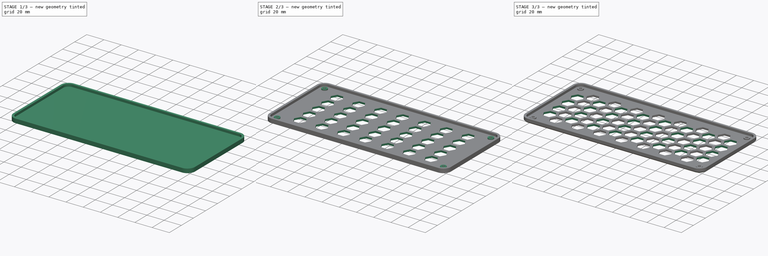
[diagram: build sequence overview — one tinted view per stage of 3, left to right]
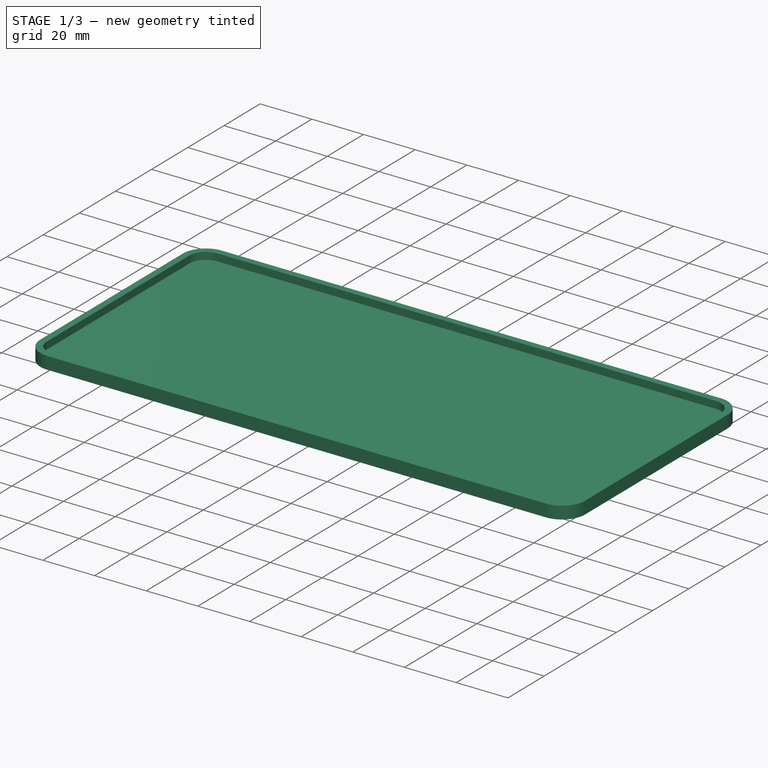
[diagram: stage 1 of 3 — iso view after this stage's code; geometry added in this stage tinted green]
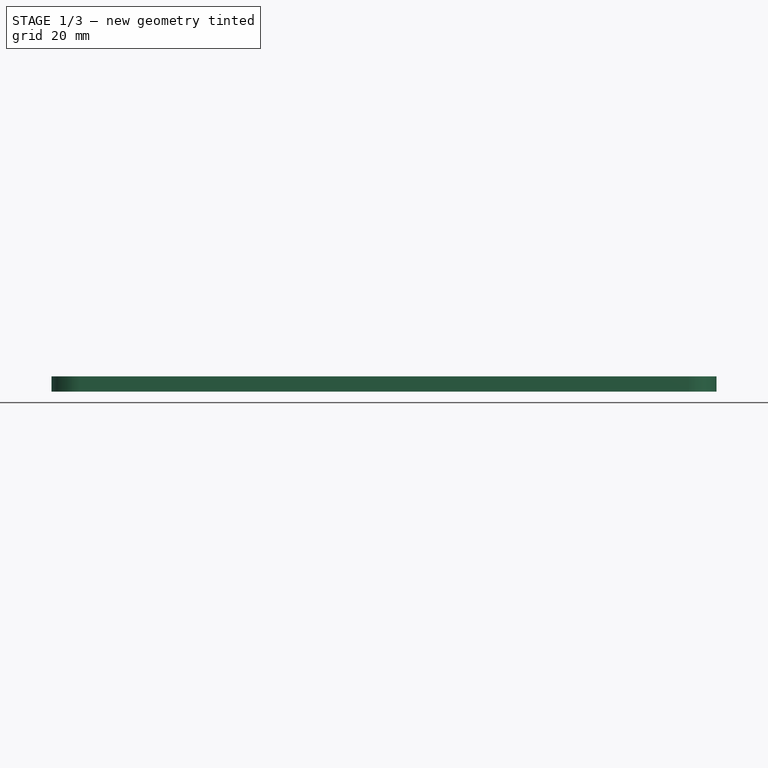
[diagram: stage 1 of 3 — front view after this stage's code; geometry added in this stage tinted green]
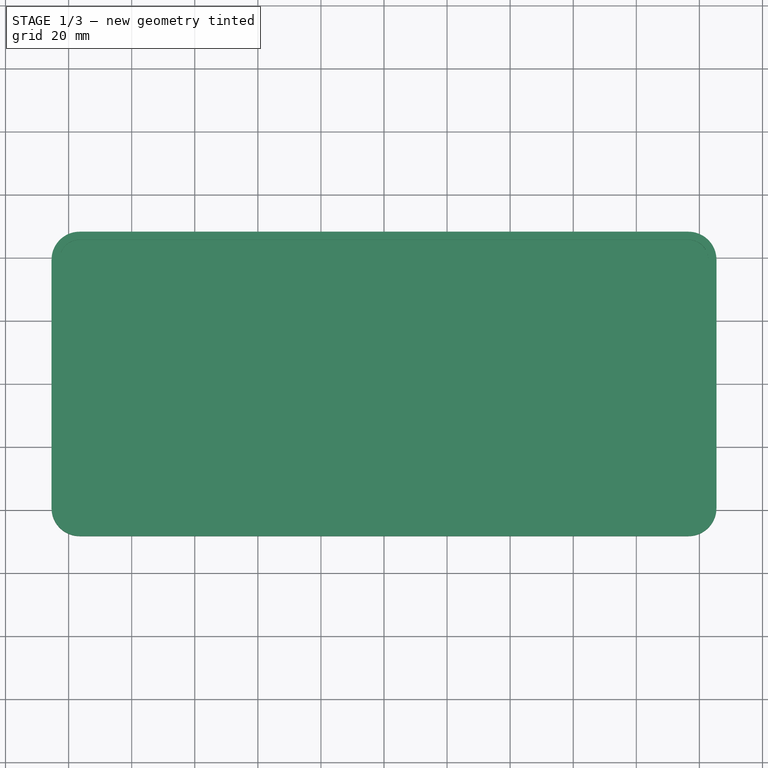
[diagram: stage 1 of 3 — top view after this stage's code; geometry added in this stage tinted green]
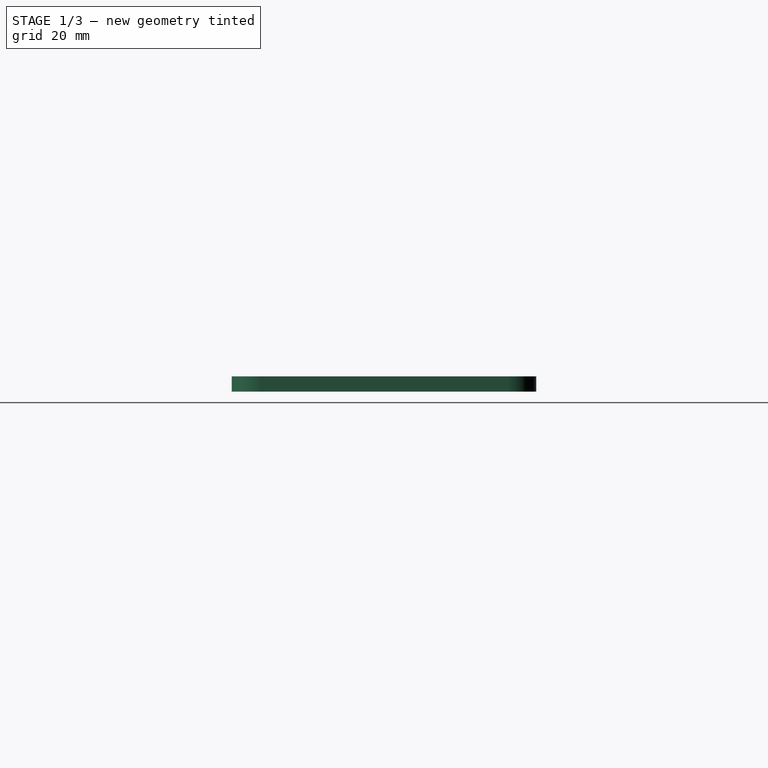
[diagram: stage 1 of 3 — right view after this stage's code; geometry added in this stage tinted green]
FCSTD DOCUMENT  (FreeCAD 0.20R29603 (Git))
Label: Back
License: All rights reserved
LicenseURL: http://en.wikipedia.org/wiki/All_rights_reserved
objects: Sketcher::SketchObject×6, PartDesign::Pad×3, PartDesign::Pocket×3, PartDesign::Chamfer×1, PartDesign::Body×1
note: 21 computed .brp shape members not serialized (recipe doc carries the construction recipe); baked Part::Feature solids carry a one-line shape summary decoded from their .brp

FEATURE [Sketcher::SketchObject] Sketch
  FullyConstrained = true
  MapMode = 5
  Support = -> [XY_Plane]
  sketch-geometry (8):
    g0: LineSegment StartX=-96.52 StartY=48.26 StartZ=0 EndX=96.52 EndY=48.26 EndZ=0
    g1: LineSegment StartX=105.41 StartY=39.37 StartZ=0 EndX=105.41 EndY=-39.37 EndZ=0
    g2: LineSegment StartX=96.52 StartY=-48.26 StartZ=0 EndX=-96.52 EndY=-48.26 EndZ=0
    g3: LineSegment StartX=-105.41 StartY=-39.37 StartZ=0 EndX=-105.41 EndY=39.37 EndZ=0
    g4: ArcOfCircle CenterX=-96.52 CenterY=39.37 CenterZ=0 NormalX=0 NormalY=0 NormalZ=1 AngleXU=0 Radius=8.89 StartAngle=1.5708 EndAngle=3.14159
    g5: ArcOfCircle CenterX=96.52 CenterY=39.37 CenterZ=0 NormalX=0 NormalY=0 NormalZ=1 AngleXU=0 Radius=8.89 StartAngle=0 EndAngle=1.5708
    g6: ArcOfCircle CenterX=96.52 CenterY=-39.37 CenterZ=0 NormalX=0 NormalY=0 NormalZ=1 AngleXU=0 Radius=8.89 StartAngle=4.71239 EndAngle=6.28319
    g7: ArcOfCircle CenterX=-96.52 CenterY=-39.37 CenterZ=0 NormalX=0 NormalY=0 NormalZ=1 AngleXU=0 Radius=8.89 StartAngle=3.14159 EndAngle=4.71239
  constraints (18):
    c: Horizontal(g0)
    c: Horizontal(g2)
    c: Vertical(g1)
    c: Vertical(g3)
    c: Tangent(g0,g4) = 1.5708
    c: Tangent(g3,g4) = 1.5708
    c: Tangent(g0,g5) = 1.5708
    c: Tangent(g1,g5) = 1.5708
    c: Tangent(g1,g6) = 1.5708
    c: Tangent(g2,g6) = 1.5708
    c: Tangent(g2,g7) = 1.5708
    c: Tangent(g3,g7) = 1.5708
    c: DistanceY(g2,g0) = 96.52
    c: DistanceX(g3,g1) = 210.82
    c: Equal(g6,g5)
    c: Radius(g5) = 8.89
    c: Symmetric(g3,g1,g-2)
    c: Symmetric(g0,g2,g-1)
FEATURE [PartDesign::Pad] Pad
  Direction = (0,0,1)
  Length = 2.032
  Length2 = 10
  Profile = -> Sketch
  ReferenceAxis = -> Sketch [N_Axis]
  Type = 0
FEATURE [Sketcher::SketchObject] Sketch001
  FullyConstrained = true
  MapMode = 5
  Placement = pos=(0,0,2.032) rot=(0,0,1;0rad)
  Support = -> [Pad]
  sketch-geometry (18):
    g0: ArcOfCircle CenterX=-96.52 CenterY=39.37 CenterZ=0 NormalX=0 NormalY=0 NormalZ=1 AngleXU=0 Radius=8.89 StartAngle=1.5708 EndAngle=3.14159
    g1: LineSegment StartX=-96.52 StartY=48.26 StartZ=0 EndX=96.52 EndY=48.26 EndZ=0
    g2: ArcOfCircle CenterX=96.52 CenterY=39.37 CenterZ=0 NormalX=0 NormalY=0 NormalZ=1 AngleXU=0 Radius=8.89 StartAngle=1.6e-15 EndAngle=1.5708
    g3: LineSegment StartX=105.41 StartY=39.37 StartZ=0 EndX=105.41 EndY=-39.37 EndZ=0
    g4: ArcOfCircle CenterX=96.52 CenterY=-39.37 CenterZ=0 NormalX=0 NormalY=0 NormalZ=1 AngleXU=0 Radius=8.89 StartAngle=4.71239 EndAngle=6.28319
    g5: LineSegment StartX=96.52 StartY=-48.26 StartZ=0 EndX=-96.52 EndY=-48.26 EndZ=0
    g6: ArcOfCircle CenterX=-96.52 CenterY=-39.37 CenterZ=0 NormalX=0 NormalY=0 NormalZ=1 AngleXU=0 Radius=8.89 StartAngle=3.14159 EndAngle=4.71239
    g7: LineSegment StartX=-105.41 StartY=-39.37 StartZ=0 EndX=-105.41 EndY=39.37 EndZ=0
    g8: GeomPoint X=-105.41 Y=48.26 Z=0
    g9: ArcOfCircle CenterX=-96.52 CenterY=39.37 CenterZ=0 NormalX=0 NormalY=0 NormalZ=1 AngleXU=0 Radius=6.35 StartAngle=1.5708 EndAngle=3.14159
    g10: LineSegment StartX=-96.52 StartY=45.72 StartZ=0 EndX=96.52 EndY=45.72 EndZ=0
    g11: ArcOfCircle CenterX=96.52 CenterY=39.37 CenterZ=0 NormalX=0 NormalY=0 NormalZ=1 AngleXU=0 Radius=6.35 StartAngle=2e-16 EndAngle=1.5708
    g12: LineSegment StartX=102.87 StartY=39.37 StartZ=0 EndX=102.87 EndY=-39.37 EndZ=0
    g13: ArcOfCircle CenterX=96.52 CenterY=-39.37 CenterZ=0 NormalX=0 NormalY=0 NormalZ=1 AngleXU=0 Radius=6.35 StartAngle=4.71239 EndAngle=6.28319
    g14: LineSegment StartX=96.52 StartY=-45.72 StartZ=0 EndX=-96.52 EndY=-45.72 EndZ=0
    g15: ArcOfCircle CenterX=-96.52 CenterY=-39.37 CenterZ=0 NormalX=0 NormalY=0 NormalZ=1 AngleXU=0 Radius=6.35 StartAngle=3.14159 EndAngle=4.71239
    g16: LineSegment StartX=-102.87 StartY=-39.37 StartZ=0 EndX=-102.87 EndY=39.37 EndZ=0
    g17: GeomPoint X=-102.87 Y=45.72 Z=0
  constraints (47):
    c: Tangent(g0,g1) = 1.5708
    c: Horizontal(g1)
    c: Horizontal(g5)
    c: Vertical(g3)
    c: Vertical(g7)
    c: Equal(g4,g6)
    c: PointOnObject(g8,g1)
    c: PointOnObject(g8,g7)
    c: Radius(g2) = 8.89
    c: DistanceX(g0,g2) = 210.82
    c: Symmetric(g1,g4,g-1)
    c: Symmetric(g2,g0,g-2)
    c: Tangent(g9,g10) = 1.5708
    c: Tangent(g10,g11) = 1.5708
    c: Tangent(g11,g12) = 1.5708
    c: Tangent(g12,g13) = 1.5708
    c: Tangent(g13,g14) = 1.5708
    c: Tangent(g14,g15) = 1.5708
    c: Tangent(g15,g16) = 1.5708
    c: Tangent(g16,g9) = 1.5708
    c: Horizontal(g10)
    c: Horizontal(g14)
    c: Vertical(g12)
    c: Vertical(g16)
    c: Equal(g11,g13)
    c: PointOnObject(g17,g10)
    c: PointOnObject(g17,g16)
    c: Radius(g11) = 6.35
    c: DistanceX(g9,g11) = 205.74
    c: DistanceY(g13,g10) = 91.44
    c: Symmetric(g9,g11,g-2)
    c: Symmetric(g14,g9,g-1)
    c: Coincident(g4,g3)
    c: Coincident(g3,g2)
    c: Coincident(g6,g5)
    c: Coincident(g6,g7)
    c: Coincident(g7,g0)
    c: Horizontal(g4,g3)
    c: Vertical(g4,g4)
    c: Coincident(g5,g4)
    c: Coincident(g2,g1)
    c: Equal(g2,g0)
    c: Equal(g0,g6)
    c: DistanceY(g5,g0) = 96.52
    c: Horizontal(g6,g6)
    c: Vertical(g6,g5)
    c: Horizontal(g0,g0)
FEATURE [PartDesign::Pad] Pad001
  BaseFeature = -> Pad
  Direction = (0,0,1)
  Length = 2.794
  Length2 = 10
  Profile = -> Sketch001
  ReferenceAxis = -> Sketch001 [N_Axis]
  Type = 0
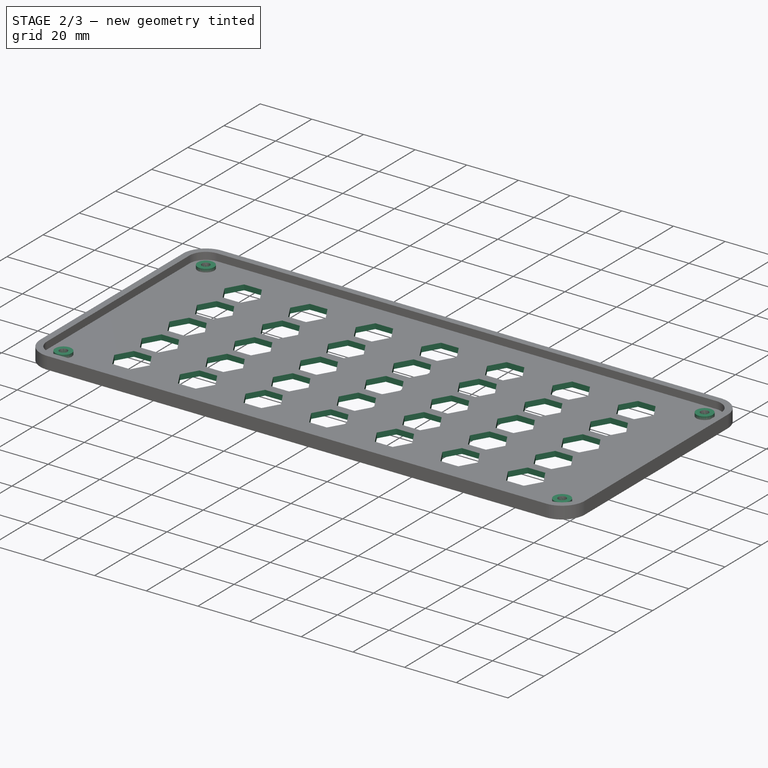
[diagram: stage 2 of 3 — iso view after this stage's code; geometry added in this stage tinted green]
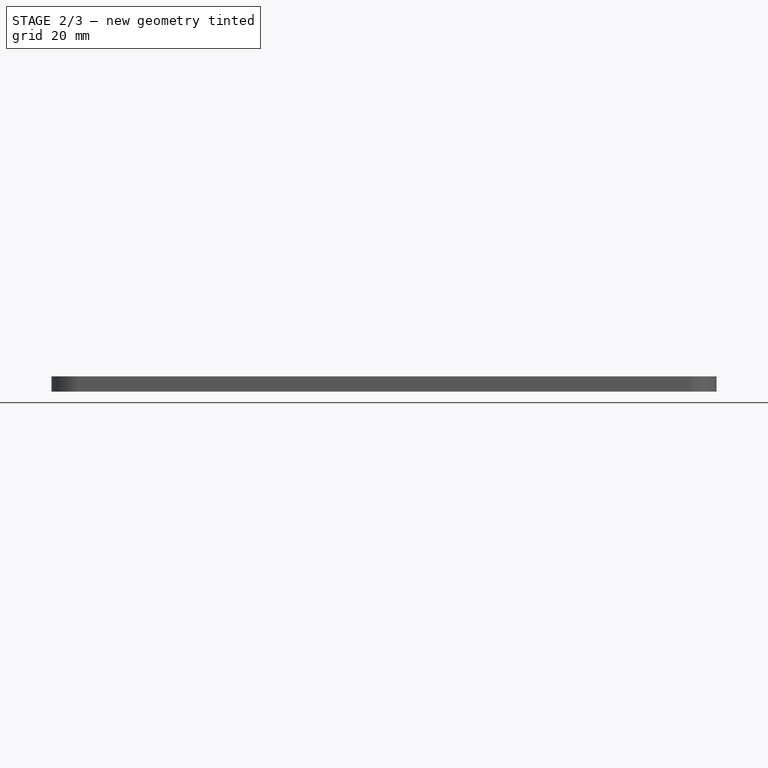
[diagram: stage 2 of 3 — front view after this stage's code; geometry added in this stage tinted green]
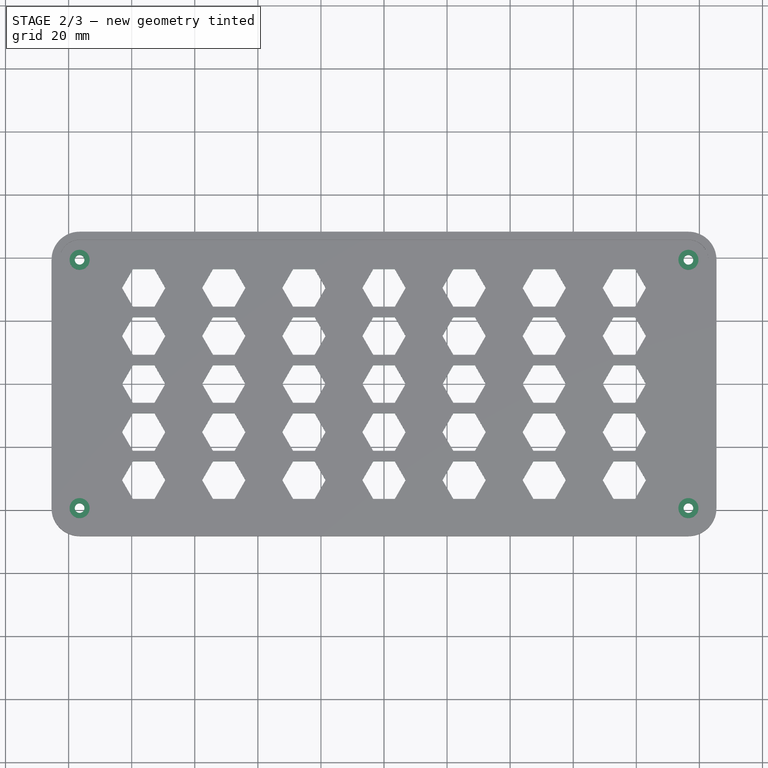
[diagram: stage 2 of 3 — top view after this stage's code; geometry added in this stage tinted green]
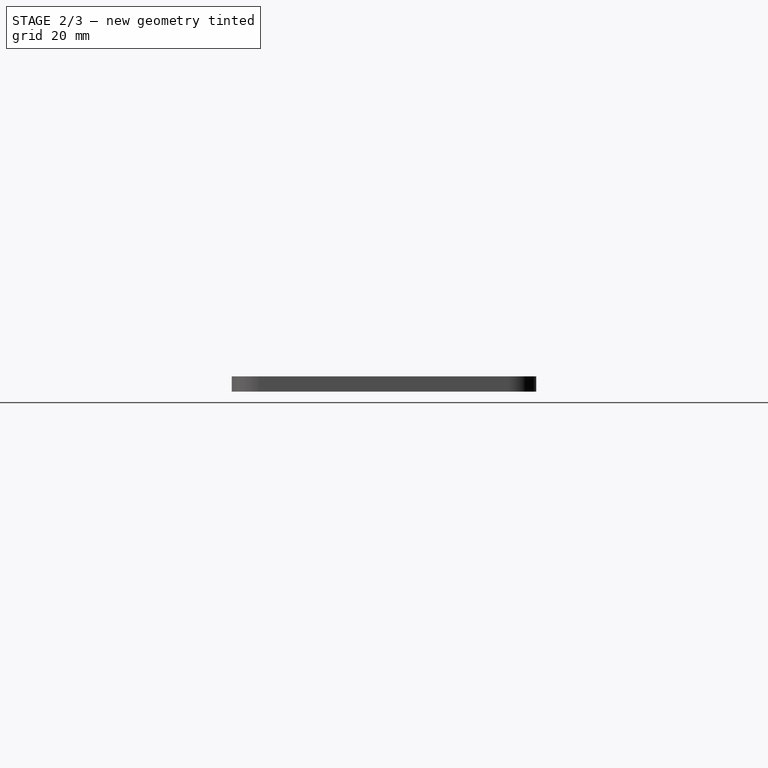
[diagram: stage 2 of 3 — right view after this stage's code; geometry added in this stage tinted green]
FEATURE [Sketcher::SketchObject] Sketch002
  FullyConstrained = true
  MapMode = 5
  Placement = pos=(0,0,2.032) rot=(0,0,1;0rad)
  Support = -> [Pad001]
  sketch-geometry (4):
    g0: Circle CenterX=-96.52 CenterY=39.37 CenterZ=0 NormalX=0 NormalY=0 NormalZ=1 AngleXU=0 Radius=3.175
    g1: Circle CenterX=96.52 CenterY=39.37 CenterZ=0 NormalX=0 NormalY=0 NormalZ=1 AngleXU=0 Radius=3.175
    g2: Circle CenterX=-96.52 CenterY=-39.37 CenterZ=0 NormalX=0 NormalY=0 NormalZ=1 AngleXU=0 Radius=3.175
    g3: Circle CenterX=96.52 CenterY=-39.37 CenterZ=0 NormalX=0 NormalY=0 NormalZ=1 AngleXU=0 Radius=3.175
  constraints (9):
    c: Symmetric(g0,g1,g-2)
    c: Symmetric(g2,g3,g-2)
    c: Symmetric(g1,g3,g-1)
    c: DistanceY(g3,g1) = 78.74
    c: DistanceX(g0,g1) = 193.04
    c: Equal(g2,g0)
    c: Equal(g1,g3)
    c: Equal(g3,g2)
    c: Diameter(g1) = 6.35
FEATURE [PartDesign::Pad] Pad002
  BaseFeature = -> Pad001
  Direction = (0,0,1)
  Length = 1.27
  Length2 = 10
  Profile = -> Sketch002
  ReferenceAxis = -> Sketch002 [N_Axis]
  Type = 0
FEATURE [Sketcher::SketchObject] Sketch003
  FullyConstrained = true
  MapMode = 5
  Placement = pos=(0,0,0) rot=(1,0,0;3.14159rad)
  Support = -> [Pad002]
  sketch-geometry (279):
    g0: LineSegment StartX=-69.342 StartY=30.48 StartZ=0 EndX=-72.771 EndY=36.4192 EndZ=0
    g1: LineSegment StartX=-72.771 StartY=36.4192 StartZ=0 EndX=-79.629 EndY=36.4192 EndZ=0
    g2: LineSegment StartX=-79.629 StartY=36.4192 StartZ=0 EndX=-83.058 EndY=30.48 EndZ=0
    g3: LineSegment StartX=-83.058 StartY=30.48 StartZ=0 EndX=-79.629 EndY=24.5408 EndZ=0
    g4: LineSegment StartX=-79.629 StartY=24.5408 StartZ=0 EndX=-72.771 EndY=24.5408 EndZ=0
    g5: LineSegment StartX=-72.771 StartY=24.5408 StartZ=0 EndX=-69.342 EndY=30.48 EndZ=0
    g6: Circle CenterX=-76.2 CenterY=30.48 CenterZ=0 NormalX=0 NormalY=0 NormalZ=1 AngleXU=0 Radius=6.858
    g7: LineSegment StartX=-43.942 StartY=30.48 StartZ=0 EndX=-47.371 EndY=36.4192 EndZ=0
    g8: LineSegment StartX=-47.371 StartY=36.4192 StartZ=0 EndX=-54.229 EndY=36.4192 EndZ=0
    g9: LineSegment StartX=-54.229 StartY=36.4192 StartZ=0 EndX=-57.658 EndY=30.48 EndZ=0
    g10: LineSegment StartX=-57.658 StartY=30.48 StartZ=0 EndX=-54.229 EndY=24.5408 EndZ=0
    g11: LineSegment StartX=-54.229 StartY=24.5408 StartZ=0 EndX=-47.371 EndY=24.5408 EndZ=0
    g12: LineSegment StartX=-47.371 StartY=24.5408 StartZ=0 EndX=-43.942 EndY=30.48 EndZ=0
    g13: Circle CenterX=-50.8 CenterY=30.48 CenterZ=0 NormalX=0 NormalY=0 NormalZ=1 AngleXU=0 Radius=6.858
    g14: LineSegment StartX=-69.342 StartY=30.48 StartZ=0 EndX=-43.942 EndY=30.48 EndZ=0
    g15: LineSegment StartX=-18.542 StartY=30.48 StartZ=0 EndX=-21.971 EndY=36.4192 EndZ=0
    g16: LineSegment StartX=-21.971 StartY=36.4192 StartZ=0 EndX=-28.829 EndY=36.4192 EndZ=0
    g17: LineSegment StartX=-28.829 StartY=36.4192 StartZ=0 EndX=-32.258 EndY=30.48 EndZ=0
    g18: LineSegment StartX=-32.258 StartY=30.48 StartZ=0 EndX=-28.829 EndY=24.5408 EndZ=0
    g19: LineSegment StartX=-28.829 StartY=24.5408 StartZ=0 EndX=-21.971 EndY=24.5408 EndZ=0
    g20: LineSegment StartX=-21.971 StartY=24.5408 StartZ=0 EndX=-18.542 EndY=30.48 EndZ=0
    g21: Circle CenterX=-25.4 CenterY=30.48 CenterZ=0 NormalX=0 NormalY=0 NormalZ=1 AngleXU=0 Radius=6.858
    g22: LineSegment StartX=-43.942 StartY=30.48 StartZ=0 EndX=-18.542 EndY=30.48 EndZ=0
    g23: LineSegment StartX=6.858 StartY=30.48 StartZ=0 EndX=3.429 EndY=36.4192 EndZ=0
    g24: LineSegment StartX=3.429 StartY=36.4192 StartZ=0 EndX=-3.429 EndY=36.4192 EndZ=0
    g25: LineSegment StartX=-3.429 StartY=36.4192 StartZ=0 EndX=-6.858 EndY=30.48 EndZ=0
    g26: LineSegment StartX=-6.858 StartY=30.48 StartZ=0 EndX=-3.429 EndY=24.5408 EndZ=0
    g27: LineSegment StartX=-3.429 StartY=24.5408 StartZ=0 EndX=3.429 EndY=24.5408 EndZ=0
    g28: LineSegment StartX=3.429 StartY=24.5408 StartZ=0 EndX=6.858 EndY=30.48 EndZ=0
    g29: Circle CenterX=-7.8e-15 CenterY=30.48 CenterZ=0 NormalX=0 NormalY=0 NormalZ=1 AngleXU=0 Radius=6.858
    g30: LineSegment StartX=-18.542 StartY=30.48 StartZ=0 EndX=6.858 EndY=30.48 EndZ=0
    g31: LineSegment StartX=32.258 StartY=30.48 StartZ=0 EndX=28.829 EndY=36.4192 EndZ=0
    g32: LineSegment StartX=28.829 StartY=36.4192 StartZ=0 EndX=21.971 EndY=36.4192 EndZ=0
    g33: LineSegment StartX=21.971 StartY=36.4192 StartZ=0 EndX=18.542 EndY=30.48 EndZ=0
    g34: LineSegment StartX=18.542 StartY=30.48 StartZ=0 EndX=21.971 EndY=24.5408 EndZ=0
    g35: LineSegment StartX=21.971 StartY=24.5408 StartZ=0 EndX=28.829 EndY=24.5408 EndZ=0
    g36: LineSegment StartX=28.829 StartY=24.5408 StartZ=0 EndX=32.258 EndY=30.48 EndZ=0
    g37: Circle CenterX=25.4 CenterY=30.48 CenterZ=0 NormalX=0 NormalY=0 NormalZ=1 AngleXU=0 Radius=6.858
    g38: LineSegment StartX=6.858 StartY=30.48 StartZ=0 EndX=32.258 EndY=30.48 EndZ=0
    g39: LineSegment StartX=57.658 StartY=30.48 StartZ=0 EndX=54.229 EndY=36.4192 EndZ=0
    g40: LineSegment StartX=54.229 StartY=36.4192 StartZ=0 EndX=47.371 EndY=36.4192 EndZ=0
    g41: LineSegment StartX=47.371 StartY=36.4192 StartZ=0 EndX=43.942 EndY=30.48 EndZ=0
    g42: LineSegment StartX=43.942 StartY=30.48 StartZ=0 EndX=47.371 EndY=24.5408 EndZ=0
    g43: LineSegment StartX=47.371 StartY=24.5408 StartZ=0 EndX=54.229 EndY=24.5408 EndZ=0
    g44: LineSegment StartX=54.229 StartY=24.5408 StartZ=0 EndX=57.658 EndY=30.48 EndZ=0
    g45: Circle CenterX=50.8 CenterY=30.48 CenterZ=0 NormalX=0 NormalY=0 NormalZ=1 AngleXU=0 Radius=6.858
    g46: LineSegment StartX=32.258 StartY=30.48 StartZ=0 EndX=57.658 EndY=30.48 EndZ=0
    g47: LineSegment StartX=83.058 StartY=30.48 StartZ=0 EndX=79.629 EndY=36.4192 EndZ=0
    g48: LineSegment StartX=79.629 StartY=36.4192 StartZ=0 EndX=72.771 EndY=36.4192 EndZ=0
    g49: LineSegment StartX=72.771 StartY=36.4192 StartZ=0 EndX=69.342 EndY=30.48 EndZ=0
    g50: LineSegment StartX=69.342 StartY=30.48 StartZ=0 EndX=72.771 EndY=24.5408 EndZ=0
    g51: LineSegment StartX=72.771 StartY=24.5408 StartZ=0 EndX=79.629 EndY=24.5408 EndZ=0
    g52: LineSegment StartX=79.629 StartY=24.5408 StartZ=0 EndX=83.058 EndY=30.48 EndZ=0
    g53: Circle CenterX=76.2 CenterY=30.48 CenterZ=0 NormalX=0 NormalY=0 NormalZ=1 AngleXU=0 Radius=6.858
    g54: LineSegment StartX=57.658 StartY=30.48 StartZ=0 EndX=83.058 EndY=30.48 EndZ=0
    g55: LineSegment StartX=-69.342 StartY=15.24 StartZ=0 EndX=-72.771 EndY=21.1792 EndZ=0
    g56: LineSegment StartX=-72.771 StartY=21.1792 StartZ=0 EndX=-79.629 EndY=21.1792 EndZ=0
    g57: LineSegment StartX=-79.629 StartY=21.1792 StartZ=0 EndX=-83.058 EndY=15.24 EndZ=0
    g58: LineSegment StartX=-83.058 StartY=15.24 StartZ=0 EndX=-79.629 EndY=9.3008 EndZ=0
    g59: LineSegment StartX=-79.629 StartY=9.3008 StartZ=0 EndX=-72.771 EndY=9.3008 EndZ=0
    g60: LineSegment StartX=-72.771 StartY=9.3008 StartZ=0 EndX=-69.342 EndY=15.24 EndZ=0
    g61: Circle CenterX=-76.2 CenterY=15.24 CenterZ=0 NormalX=0 NormalY=0 NormalZ=1 AngleXU=0 Radius=6.858
    g62: LineSegment StartX=-69.342 StartY=30.48 StartZ=0 EndX=-69.342 EndY=15.24 EndZ=0
    g63: LineSegment StartX=-43.942 StartY=15.24 StartZ=0 EndX=-47.371 EndY=21.1792 EndZ=0
    g64: LineSegment StartX=-47.371 StartY=21.1792 StartZ=0 EndX=-54.229 EndY=21.1792 EndZ=0
    g65: LineSegment StartX=-54.229 StartY=21.1792 StartZ=0 EndX=-57.658 EndY=15.24 EndZ=0
    g66: LineSegment StartX=-57.658 StartY=15.24 StartZ=0 EndX=-54.229 EndY=9.3008 EndZ=0
    g67: LineSegment StartX=-54.229 StartY=9.3008 StartZ=0 EndX=-47.371 EndY=9.3008 EndZ=0
    g68: LineSegment StartX=-47.371 StartY=9.3008 StartZ=0 EndX=-43.942 EndY=15.24 EndZ=0
    g69: Circle CenterX=-50.8 CenterY=15.24 CenterZ=0 NormalX=0 NormalY=0 NormalZ=1 AngleXU=0 Radius=6.858
    g70: LineSegment StartX=-69.342 StartY=15.24 StartZ=0 EndX=-43.942 EndY=15.24 EndZ=0
    g71: LineSegment StartX=-18.542 StartY=15.24 StartZ=0 EndX=-21.971 EndY=21.1792 EndZ=0
    g72: LineSegment StartX=-21.971 StartY=21.1792 StartZ=0 EndX=-28.829 EndY=21.1792 EndZ=0
    g73: LineSegment StartX=-28.829 StartY=21.1792 StartZ=0 EndX=-32.258 EndY=15.24 EndZ=0
    g74: LineSegment StartX=-32.258 StartY=15.24 StartZ=0 EndX=-28.829 EndY=9.3008 EndZ=0
    g75: LineSegment StartX=-28.829 StartY=9.3008 StartZ=0 EndX=-21.971 EndY=9.3008 EndZ=0
    g76: LineSegment StartX=-21.971 StartY=9.3008 StartZ=0 EndX=-18.542 EndY=15.24 EndZ=0
    g77: Circle CenterX=-25.4 CenterY=15.24 CenterZ=0 NormalX=0 NormalY=0 NormalZ=1 AngleXU=0 Radius=6.858
    g78: LineSegment StartX=-43.942 StartY=15.24 StartZ=0 EndX=-18.542 EndY=15.24 EndZ=0
    g79: LineSegment StartX=6.858 StartY=15.24 StartZ=0 EndX=3.429 EndY=21.1792 EndZ=0
    g80: LineSegment StartX=3.429 StartY=21.1792 StartZ=0 EndX=-3.429 EndY=21.1792 EndZ=0
    g81: LineSegment StartX=-3.429 StartY=21.1792 StartZ=0 EndX=-6.858 EndY=15.24 EndZ=0
    g82: LineSegment StartX=-6.858 StartY=15.24 StartZ=0 EndX=-3.429 EndY=9.3008 EndZ=0
    g83: LineSegment StartX=-3.429 StartY=9.3008 StartZ=0 EndX=3.429 EndY=9.3008 EndZ=0
    g84: LineSegment StartX=3.429 StartY=9.3008 StartZ=0 EndX=6.858 EndY=15.24 EndZ=0
    g85: Circle CenterX=-6e-15 CenterY=15.24 CenterZ=0 NormalX=0 NormalY=0 NormalZ=1 AngleXU=0 Radius=6.858
    g86: LineSegment StartX=-18.542 StartY=15.24 StartZ=0 EndX=6.858 EndY=15.24 EndZ=0
    g87: LineSegment StartX=32.258 StartY=15.24 StartZ=0 EndX=28.829 EndY=21.1792 EndZ=0
    g88: LineSegment StartX=28.829 StartY=21.1792 StartZ=0 EndX=21.971 EndY=21.1792 EndZ=0
    g89: LineSegment StartX=21.971 StartY=21.1792 StartZ=0 EndX=18.542 EndY=15.24 EndZ=0
    g90: LineSegment StartX=18.542 StartY=15.24 StartZ=0 EndX=21.971 EndY=9.3008 EndZ=0
    g91: LineSegment StartX=21.971 StartY=9.3008 StartZ=0 EndX=28.829 EndY=9.3008 EndZ=0
    g92: LineSegment StartX=28.829 StartY=9.3008 StartZ=0 EndX=32.258 EndY=15.24 EndZ=0
    g93: Circle CenterX=25.4 CenterY=15.24 CenterZ=0 NormalX=0 NormalY=0 NormalZ=1 AngleXU=0 Radius=6.858
    g94: LineSegment StartX=6.858 StartY=15.24 StartZ=0 EndX=32.258 EndY=15.24 EndZ=0
    g95: LineSegment StartX=57.658 StartY=15.24 StartZ=0 EndX=54.229 EndY=21.1792 EndZ=0
    g96: LineSegment StartX=54.229 StartY=21.1792 StartZ=0 EndX=47.371 EndY=21.1792 EndZ=0
    g97: LineSegment StartX=47.371 StartY=21.1792 StartZ=0 EndX=43.942 EndY=15.24 EndZ=0
    g98: LineSegment StartX=43.942 StartY=15.24 StartZ=0 EndX=47.371 EndY=9.3008 EndZ=0
    g99: LineSegment StartX=47.371 StartY=9.3008 StartZ=0 EndX=54.229 EndY=9.3008 EndZ=0
    g100: LineSegment StartX=54.229 StartY=9.3008 StartZ=0 EndX=57.658 EndY=15.24 EndZ=0
    g101: Circle CenterX=50.8 CenterY=15.24 CenterZ=0 NormalX=0 NormalY=0 NormalZ=1 AngleXU=0 Radius=6.858
    g102: LineSegment StartX=32.258 StartY=15.24 StartZ=0 EndX=57.658 EndY=15.24 EndZ=0
    g103: LineSegment StartX=83.058 StartY=15.24 StartZ=0 EndX=79.629 EndY=21.1792 EndZ=0
    g104: LineSegment StartX=79.629 StartY=21.1792 StartZ=0 EndX=72.771 EndY=21.1792 EndZ=0
    g105: LineSegment StartX=72.771 StartY=21.1792 StartZ=0 EndX=69.342 EndY=15.24 EndZ=0
    g106: LineSegment StartX=69.342 StartY=15.24 StartZ=0 EndX=72.771 EndY=9.3008 EndZ=0
    g107: LineSegment StartX=72.771 StartY=9.3008 StartZ=0 EndX=79.629 EndY=9.3008 EndZ=0
    g108: LineSegment StartX=79.629 StartY=9.3008 StartZ=0 EndX=83.058 EndY=15.24 EndZ=0
    g109: Circle CenterX=76.2 CenterY=15.24 CenterZ=0 NormalX=0 NormalY=0 NormalZ=1 AngleXU=0 Radius=6.858
    g110: LineSegment StartX=57.658 StartY=15.24 StartZ=0 EndX=83.058 EndY=15.24 EndZ=0
    g111: LineSegment StartX=-69.342 StartY=-3.6e-15 StartZ=0 EndX=-72.771 EndY=5.9392 EndZ=0
    g112: LineSegment StartX=-72.771 StartY=5.9392 StartZ=0 EndX=-79.629 EndY=5.9392 EndZ=0
    g113: LineSegment StartX=-79.629 StartY=5.9392 StartZ=0 EndX=-83.058 EndY=-2.7e-15 EndZ=0
    g114: LineSegment StartX=-83.058 StartY=-2.7e-15 StartZ=0 EndX=-79.629 EndY=-5.9392 EndZ=0
    g115: LineSegment StartX=-79.629 StartY=-5.9392 StartZ=0 EndX=-72.771 EndY=-5.9392 EndZ=0
    g116: LineSegment StartX=-72.771 StartY=-5.9392 StartZ=0 EndX=-69.342 EndY=-3.6e-15 EndZ=0
    g117: Circle CenterX=-76.2 CenterY=-3.1e-15 CenterZ=0 NormalX=0 NormalY=0 NormalZ=1 AngleXU=0 Radius=6.858
    g118: LineSegment StartX=-69.342 StartY=15.24 StartZ=0 EndX=-69.342 EndY=-3.6e-15 EndZ=0
    g119: LineSegment StartX=-43.942 StartY=-2.7e-15 StartZ=0 EndX=-47.371 EndY=5.9392 EndZ=0
    g120: LineSegment StartX=-47.371 StartY=5.9392 StartZ=0 EndX=-54.229 EndY=5.9392 EndZ=0
    g121: LineSegment StartX=-54.229 StartY=5.9392 StartZ=0 EndX=-57.658 EndY=-3.6e-15 EndZ=0
    g122: LineSegment StartX=-57.658 StartY=-3.6e-15 StartZ=0 EndX=-54.229 EndY=-5.9392 EndZ=0
    g123: LineSegment StartX=-54.229 StartY=-5.9392 StartZ=0 EndX=-47.371 EndY=-5.9392 EndZ=0
    g124: LineSegment StartX=-47.371 StartY=-5.9392 StartZ=0 EndX=-43.942 EndY=-2.7e-15 EndZ=0
    g125: Circle CenterX=-50.8 CenterY=-2.9e-15 CenterZ=0 NormalX=0 NormalY=0 NormalZ=1 AngleXU=0 Radius=6.858
    g126: LineSegment StartX=-69.342 StartY=-3.6e-15 StartZ=0 EndX=-43.942 EndY=-2.7e-15 EndZ=0
    g127: LineSegment StartX=-18.542 StartY=-2.7e-15 StartZ=0 EndX=-21.971 EndY=5.9392 EndZ=0
    g128: LineSegment StartX=-21.971 StartY=5.9392 StartZ=0 EndX=-28.829 EndY=5.9392 EndZ=0
    g129: LineSegment StartX=-28.829 StartY=5.9392 StartZ=0 EndX=-32.258 EndY=-2.7e-15 EndZ=0
    g130: LineSegment StartX=-32.258 StartY=-2.7e-15 StartZ=0 EndX=-28.829 EndY=-5.9392 EndZ=0
    g131: LineSegment StartX=-28.829 StartY=-5.9392 StartZ=0 EndX=-21.971 EndY=-5.9392 EndZ=0
    g132: LineSegment StartX=-21.971 StartY=-5.9392 StartZ=0 EndX=-18.542 EndY=-2.7e-15 EndZ=0
    g133: Circle CenterX=-25.4 CenterY=-2.3e-15 CenterZ=0 NormalX=0 NormalY=0 NormalZ=1 AngleXU=0 Radius=6.858
    g134: LineSegment StartX=-43.942 StartY=-2.7e-15 StartZ=0 EndX=-18.542 EndY=-2.7e-15 EndZ=0
    g135: LineSegment StartX=6.858 StartY=-2.7e-15 StartZ=0 EndX=3.429 EndY=5.9392 EndZ=0
    g136: LineSegment StartX=3.429 StartY=5.9392 StartZ=0 EndX=-3.429 EndY=5.9392 EndZ=0
    g137: LineSegment StartX=-3.429 StartY=5.9392 StartZ=0 EndX=-6.858 EndY=-2.7e-15 EndZ=0
    g138: LineSegment StartX=-6.858 StartY=-2.7e-15 StartZ=0 EndX=-3.429 EndY=-5.9392 EndZ=0
    g139: LineSegment StartX=-3.429 StartY=-5.9392 StartZ=0 EndX=3.429 EndY=-5.9392 EndZ=0
    g140: LineSegment StartX=3.429 StartY=-5.9392 StartZ=0 EndX=6.858 EndY=-2.7e-15 EndZ=0
    g141: Circle CenterX=-1.03e-14 CenterY=-3e-15 CenterZ=0 NormalX=0 NormalY=0 NormalZ=1 AngleXU=0 Radius=6.858
    g142: LineSegment StartX=-18.542 StartY=-2.7e-15 StartZ=0 EndX=6.858 EndY=-2.7e-15 EndZ=0
    g143: LineSegment StartX=32.258 StartY=-2.7e-15 StartZ=0 EndX=28.829 EndY=5.9392 EndZ=0
    g144: LineSegment StartX=28.829 StartY=5.9392 StartZ=0 EndX=21.971 EndY=5.9392 EndZ=0
    g145: LineSegment StartX=21.971 StartY=5.9392 StartZ=0 EndX=18.542 EndY=-2.7e-15 EndZ=0
    g146: LineSegment StartX=18.542 StartY=-2.7e-15 StartZ=0 EndX=21.971 EndY=-5.9392 EndZ=0
    g147: LineSegment StartX=21.971 StartY=-5.9392 StartZ=0 EndX=28.829 EndY=-5.9392 EndZ=0
    g148: LineSegment StartX=28.829 StartY=-5.9392 StartZ=0 EndX=32.258 EndY=-2.7e-15 EndZ=0
    g149: Circle CenterX=25.4 CenterY=-2.6e-15 CenterZ=0 NormalX=0 NormalY=0 NormalZ=1 AngleXU=0 Radius=6.858
    g150: LineSegment StartX=6.858 StartY=-2.7e-15 StartZ=0 EndX=32.258 EndY=-2.7e-15 EndZ=0
    g151: LineSegment StartX=57.658 StartY=-2.7e-15 StartZ=0 EndX=54.229 EndY=5.9392 EndZ=0
    g152: LineSegment StartX=54.229 StartY=5.9392 StartZ=0 EndX=47.371 EndY=5.9392 EndZ=0
    g153: LineSegment StartX=47.371 StartY=5.9392 StartZ=0 EndX=43.942 EndY=-4.4e-15 EndZ=0
    g154: LineSegment StartX=43.942 StartY=-4.4e-15 StartZ=0 EndX=47.371 EndY=-5.9392 EndZ=0
    g155: LineSegment StartX=47.371 StartY=-5.9392 StartZ=0 EndX=54.229 EndY=-5.9392 EndZ=0
    g156: LineSegment StartX=54.229 StartY=-5.9392 StartZ=0 EndX=57.658 EndY=-2.7e-15 EndZ=0
    g157: Circle CenterX=50.8 CenterY=-3.7e-15 CenterZ=0 NormalX=0 NormalY=0 NormalZ=1 AngleXU=0 Radius=6.858
    g158: LineSegment StartX=32.258 StartY=-2.7e-15 StartZ=0 EndX=57.658 EndY=-2.7e-15 EndZ=0
    g159: LineSegment StartX=83.058 StartY=-2.7e-15 StartZ=0 EndX=79.629 EndY=5.9392 EndZ=0
    g160: LineSegment StartX=79.629 StartY=5.9392 StartZ=0 EndX=72.771 EndY=5.9392 EndZ=0
    g161: LineSegment StartX=72.771 StartY=5.9392 StartZ=0 EndX=69.342 EndY=-4.4e-15 EndZ=0
    g162: LineSegment StartX=69.342 StartY=-4.4e-15 StartZ=0 EndX=72.771 EndY=-5.9392 EndZ=0
    g163: LineSegment StartX=72.771 StartY=-5.9392 StartZ=0 EndX=79.629 EndY=-5.9392 EndZ=0
    g164: LineSegment StartX=79.629 StartY=-5.9392 StartZ=0 EndX=83.058 EndY=-2.7e-15 EndZ=0
    g165: Circle CenterX=76.2 CenterY=-3.4e-15 CenterZ=0 NormalX=0 NormalY=0 NormalZ=1 AngleXU=0 Radius=6.858
    g166: LineSegment StartX=57.658 StartY=-2.7e-15 StartZ=0 EndX=83.058 EndY=-2.7e-15 EndZ=0
    g167: LineSegment StartX=-69.342 StartY=-15.24 StartZ=0 EndX=-72.771 EndY=-9.3008 EndZ=0
    g168: LineSegment StartX=-72.771 StartY=-9.3008 StartZ=0 EndX=-79.629 EndY=-9.3008 EndZ=0
    g169: LineSegment StartX=-79.629 StartY=-9.3008 StartZ=0 EndX=-83.058 EndY=-15.24 EndZ=0
    g170: LineSegment StartX=-83.058 StartY=-15.24 StartZ=0 EndX=-79.629 EndY=-21.1792 EndZ=0
    g171: LineSegment StartX=-79.629 StartY=-21.1792 StartZ=0 EndX=-72.771 EndY=-21.1792 EndZ=0
    g172: LineSegment StartX=-72.771 StartY=-21.1792 StartZ=0 EndX=-69.342 EndY=-15.24 EndZ=0
    g173: Circle CenterX=-76.2 CenterY=-15.24 CenterZ=0 NormalX=0 NormalY=0 NormalZ=1 AngleXU=0 Radius=6.858
    g174: LineSegment StartX=-69.342 StartY=-3.6e-15 StartZ=0 EndX=-69.342 EndY=-15.24 EndZ=0
    g175: LineSegment StartX=-43.942 StartY=-15.24 StartZ=0 EndX=-47.371 EndY=-9.3008 EndZ=0
    g176: LineSegment StartX=-47.371 StartY=-9.3008 StartZ=0 EndX=-54.229 EndY=-9.3008 EndZ=0
    g177: LineSegment StartX=-54.229 StartY=-9.3008 StartZ=0 EndX=-57.658 EndY=-15.24 EndZ=0
    g178: LineSegment StartX=-57.658 StartY=-15.24 StartZ=0 EndX=-54.229 EndY=-21.1792 EndZ=0
    g179: LineSegment StartX=-54.229 StartY=-21.1792 StartZ=0 EndX=-47.371 EndY=-21.1792 EndZ=0
    g180: LineSegment StartX=-47.371 StartY=-21.1792 StartZ=0 EndX=-43.942 EndY=-15.24 EndZ=0
    g181: Circle CenterX=-50.8 CenterY=-15.24 CenterZ=0 NormalX=0 NormalY=0 NormalZ=1 AngleXU=0 Radius=6.858
    g182: LineSegment StartX=-69.342 StartY=-15.24 StartZ=0 EndX=-43.942 EndY=-15.24 EndZ=0
    g183: LineSegment StartX=-18.542 StartY=-15.24 StartZ=0 EndX=-21.971 EndY=-9.3008 EndZ=0
    g184: LineSegment StartX=-21.971 StartY=-9.3008 StartZ=0 EndX=-28.829 EndY=-9.3008 EndZ=0
    g185: LineSegment StartX=-28.829 StartY=-9.3008 StartZ=0 EndX=-32.258 EndY=-15.24 EndZ=0
    g186: LineSegment StartX=-32.258 StartY=-15.24 StartZ=0 EndX=-28.829 EndY=-21.1792 EndZ=0
    g187: LineSegment StartX=-28.829 StartY=-21.1792 StartZ=0 EndX=-21.971 EndY=-21.1792 EndZ=0
    g188: LineSegment StartX=-21.971 StartY=-21.1792 StartZ=0 EndX=-18.542 EndY=-15.24 EndZ=0
    g189: Circle CenterX=-25.4 CenterY=-15.24 CenterZ=0 NormalX=0 NormalY=0 NormalZ=1 AngleXU=0 Radius=6.858
    g190: LineSegment StartX=-43.942 StartY=-15.24 StartZ=0 EndX=-18.542 EndY=-15.24 EndZ=0
    g191: LineSegment StartX=6.858 StartY=-15.24 StartZ=0 EndX=3.429 EndY=-9.3008 EndZ=0
    g192: LineSegment StartX=3.429 StartY=-9.3008 StartZ=0 EndX=-3.429 EndY=-9.3008 EndZ=0
    g193: LineSegment StartX=-3.429 StartY=-9.3008 StartZ=0 EndX=-6.858 EndY=-15.24 EndZ=0
    g194: LineSegment StartX=-6.858 StartY=-15.24 StartZ=0 EndX=-3.429 EndY=-21.1792 EndZ=0
    g195: LineSegment StartX=-3.429 StartY=-21.1792 StartZ=0 EndX=3.429 EndY=-21.1792 EndZ=0
    g196: LineSegment StartX=3.429 StartY=-21.1792 StartZ=0 EndX=6.858 EndY=-15.24 EndZ=0
    g197: Circle CenterX=-7.7e-15 CenterY=-15.24 CenterZ=0 NormalX=0 NormalY=0 NormalZ=1 AngleXU=0 Radius=6.858
    g198: LineSegment StartX=-18.542 StartY=-15.24 StartZ=0 EndX=6.858 EndY=-15.24 EndZ=0
    g199: LineSegment StartX=32.258 StartY=-15.24 StartZ=0 EndX=28.829 EndY=-9.3008 EndZ=0
    g200: LineSegment StartX=28.829 StartY=-9.3008 StartZ=0 EndX=21.971 EndY=-9.3008 EndZ=0
    g201: LineSegment StartX=21.971 StartY=-9.3008 StartZ=0 EndX=18.542 EndY=-15.24 EndZ=0
    g202: LineSegment StartX=18.542 StartY=-15.24 StartZ=0 EndX=21.971 EndY=-21.1792 EndZ=0
    g203: LineSegment StartX=21.971 StartY=-21.1792 StartZ=0 EndX=28.829 EndY=-21.1792 EndZ=0
    g204: LineSegment StartX=28.829 StartY=-21.1792 StartZ=0 EndX=32.258 EndY=-15.24 EndZ=0
    g205: Circle CenterX=25.4 CenterY=-15.24 CenterZ=0 NormalX=0 NormalY=0 NormalZ=1 AngleXU=0 Radius=6.858
    g206: LineSegment StartX=6.858 StartY=-15.24 StartZ=0 EndX=32.258 EndY=-15.24 EndZ=0
    g207: LineSegment StartX=57.658 StartY=-15.24 StartZ=0 EndX=54.229 EndY=-9.3008 EndZ=0
    g208: LineSegment StartX=54.229 StartY=-9.3008 StartZ=0 EndX=47.371 EndY=-9.3008 EndZ=0
    g209: LineSegment StartX=47.371 StartY=-9.3008 StartZ=0 EndX=43.942 EndY=-15.24 EndZ=0
    g210: LineSegment StartX=43.942 StartY=-15.24 StartZ=0 EndX=47.371 EndY=-21.1792 EndZ=0
    g211: LineSegment StartX=47.371 StartY=-21.1792 StartZ=0 EndX=54.229 EndY=-21.1792 EndZ=0
    g212: LineSegment StartX=54.229 StartY=-21.1792 StartZ=0 EndX=57.658 EndY=-15.24 EndZ=0
    g213: Circle CenterX=50.8 CenterY=-15.24 CenterZ=0 NormalX=0 NormalY=0 NormalZ=1 AngleXU=0 Radius=6.858
    g214: LineSegment StartX=32.258 StartY=-15.24 StartZ=0 EndX=57.658 EndY=-15.24 EndZ=0
    g215: LineSegment StartX=83.058 StartY=-15.24 StartZ=0 EndX=79.629 EndY=-9.3008 EndZ=0
    g216: LineSegment StartX=79.629 StartY=-9.3008 StartZ=0 EndX=72.771 EndY=-9.3008 EndZ=0
    g217: LineSegment StartX=72.771 StartY=-9.3008 StartZ=0 EndX=69.342 EndY=-15.24 EndZ=0
    g218: LineSegment StartX=69.342 StartY=-15.24 StartZ=0 EndX=72.771 EndY=-21.1792 EndZ=0
    g219: LineSegment StartX=72.771 StartY=-21.1792 StartZ=0 EndX=79.629 EndY=-21.1792 EndZ=0
    g220: LineSegment StartX=79.629 StartY=-21.1792 StartZ=0 EndX=83.058 EndY=-15.24 EndZ=0
    g221: Circle CenterX=76.2 CenterY=-15.24 CenterZ=0 NormalX=0 NormalY=0 NormalZ=1 AngleXU=0 Radius=6.858
    g222: LineSegment StartX=57.658 StartY=-15.24 StartZ=0 EndX=83.058 EndY=-15.24 EndZ=0
    g223: LineSegment StartX=-69.342 StartY=-30.48 StartZ=0 EndX=-72.771 EndY=-24.5408 EndZ=0
    g224: LineSegment StartX=-72.771 StartY=-24.5408 StartZ=0 EndX=-79.629 EndY=-24.5408 EndZ=0
    g225: LineSegment StartX=-79.629 StartY=-24.5408 StartZ=0 EndX=-83.058 EndY=-30.48 EndZ=0
    g226: LineSegment StartX=-83.058 StartY=-30.48 StartZ=0 EndX=-79.629 EndY=-36.4192 EndZ=0
    g227: LineSegment StartX=-79.629 StartY=-36.4192 StartZ=0 EndX=-72.771 EndY=-36.4192 EndZ=0
    g228: LineSegment StartX=-72.771 StartY=-36.4192 StartZ=0 EndX=-69.342 EndY=-30.48 EndZ=0
    g229: Circle CenterX=-76.2 CenterY=-30.48 CenterZ=0 NormalX=0 NormalY=0 NormalZ=1 AngleXU=0 Radius=6.858
    g230: LineSegment StartX=-69.342 StartY=-15.24 StartZ=0 EndX=-69.342 EndY=-30.48 EndZ=0
    g231: LineSegment StartX=-43.942 StartY=-30.48 StartZ=0 EndX=-47.371 EndY=-24.5408 EndZ=0
    g232: LineSegment StartX=-47.371 StartY=-24.5408 StartZ=0 EndX=-54.229 EndY=-24.5408 EndZ=0
    g233: LineSegment StartX=-54.229 StartY=-24.5408 StartZ=0 EndX=-57.658 EndY=-30.48 EndZ=0
    g234: LineSegment StartX=-57.658 StartY=-30.48 StartZ=0 EndX=-54.229 EndY=-36.4192 EndZ=0
    g235: LineSegment StartX=-54.229 StartY=-36.4192 StartZ=0 EndX=-47.371 EndY=-36.4192 EndZ=0
    g236: LineSegment StartX=-47.371 StartY=-36.4192 StartZ=0 EndX=-43.942 EndY=-30.48 EndZ=0
    g237: Circle CenterX=-50.8 CenterY=-30.48 CenterZ=0 NormalX=0 NormalY=0 NormalZ=1 AngleXU=0 Radius=6.858
    g238: LineSegment StartX=-69.342 StartY=-30.48 StartZ=0 EndX=-43.942 EndY=-30.48 EndZ=0
    g239: LineSegment StartX=-18.542 StartY=-30.48 StartZ=0 EndX=-21.971 EndY=-24.5408 EndZ=0
    g240: LineSegment StartX=-21.971 StartY=-24.5408 StartZ=0 EndX=-28.829 EndY=-24.5408 EndZ=0
    g241: LineSegment StartX=-28.829 StartY=-24.5408 StartZ=0 EndX=-32.258 EndY=-30.48 EndZ=0
    g242: LineSegment StartX=-32.258 StartY=-30.48 StartZ=0 EndX=-28.829 EndY=-36.4192 EndZ=0
    g243: LineSegment StartX=-28.829 StartY=-36.4192 StartZ=0 EndX=-21.971 EndY=-36.4192 EndZ=0
    g244: LineSegment StartX=-21.971 StartY=-36.4192 StartZ=0 EndX=-18.542 EndY=-30.48 EndZ=0
    g245: Circle CenterX=-25.4 CenterY=-30.48 CenterZ=0 NormalX=0 NormalY=0 NormalZ=1 AngleXU=0 Radius=6.858
    g246: LineSegment StartX=-43.942 StartY=-30.48 StartZ=0 EndX=-18.542 EndY=-30.48 EndZ=0
    g247: LineSegment StartX=6.858 StartY=-30.48 StartZ=0 EndX=3.429 EndY=-24.5408 EndZ=0
    g248: LineSegment StartX=3.429 StartY=-24.5408 StartZ=0 EndX=-3.429 EndY=-24.5408 EndZ=0
    g249: LineSegment StartX=-3.429 StartY=-24.5408 StartZ=0 EndX=-6.858 EndY=-30.48 EndZ=0
    g250: LineSegment StartX=-6.858 StartY=-30.48 StartZ=0 EndX=-3.429 EndY=-36.4192 EndZ=0
    g251: LineSegment StartX=-3.429 StartY=-36.4192 StartZ=0 EndX=3.429 EndY=-36.4192 EndZ=0
    g252: LineSegment StartX=3.429 StartY=-36.4192 StartZ=0 EndX=6.858 EndY=-30.48 EndZ=0
    g253: Circle CenterX=-8.6e-15 CenterY=-30.48 CenterZ=0 NormalX=0 NormalY=0 NormalZ=1 AngleXU=0 Radius=6.858
    g254: LineSegment StartX=-18.542 StartY=-30.48 StartZ=0 EndX=6.858 EndY=-30.48 EndZ=0
    g255: LineSegment StartX=32.258 StartY=-30.48 StartZ=0 EndX=28.829 EndY=-24.5408 EndZ=0
    g256: LineSegment StartX=28.829 StartY=-24.5408 StartZ=0 EndX=21.971 EndY=-24.5408 EndZ=0
    g257: LineSegment StartX=21.971 StartY=-24.5408 StartZ=0 EndX=18.542 EndY=-30.48 EndZ=0
    g258: LineSegment StartX=18.542 StartY=-30.48 StartZ=0 EndX=21.971 EndY=-36.4192 EndZ=0
    g259: LineSegment StartX=21.971 StartY=-36.4192 StartZ=0 EndX=28.829 EndY=-36.4192 EndZ=0
    g260: LineSegment StartX=28.829 StartY=-36.4192 StartZ=0 EndX=32.258 EndY=-30.48 EndZ=0
    g261: Circle CenterX=25.4 CenterY=-30.48 CenterZ=0 NormalX=0 NormalY=0 NormalZ=1 AngleXU=0 Radius=6.858
    g262: LineSegment StartX=6.858 StartY=-30.48 StartZ=0 EndX=32.258 EndY=-30.48 EndZ=0
    g263: LineSegment StartX=57.658 StartY=-30.48 StartZ=0 EndX=54.229 EndY=-24.5408 EndZ=0
    g264: LineSegment StartX=54.229 StartY=-24.5408 StartZ=0 EndX=47.371 EndY=-24.5408 EndZ=0
    g265: LineSegment StartX=47.371 StartY=-24.5408 StartZ=0 EndX=43.942 EndY=-30.48 EndZ=0
    g266: LineSegment StartX=43.942 StartY=-30.48 StartZ=0 EndX=47.371 EndY=-36.4192 EndZ=0
    g267: LineSegment StartX=47.371 StartY=-36.4192 StartZ=0 EndX=54.229 EndY=-36.4192 EndZ=0
    g268: LineSegment StartX=54.229 StartY=-36.4192 StartZ=0 EndX=57.658 EndY=-30.48 EndZ=0
    g269: Circle CenterX=50.8 CenterY=-30.48 CenterZ=0 NormalX=0 NormalY=0 NormalZ=1 AngleXU=0 Radius=6.858
    g270: LineSegment StartX=32.258 StartY=-30.48 StartZ=0 EndX=57.658 EndY=-30.48 EndZ=0
    g271: LineSegment StartX=83.058 StartY=-30.48 StartZ=0 EndX=79.629 EndY=-24.5408 EndZ=0
    g272: LineSegment StartX=79.629 StartY=-24.5408 StartZ=0 EndX=72.771 EndY=-24.5408 EndZ=0
    g273: LineSegment StartX=72.771 StartY=-24.5408 StartZ=0 EndX=69.342 EndY=-30.48 EndZ=0
    g274: LineSegment StartX=69.342 StartY=-30.48 StartZ=0 EndX=72.771 EndY=-36.4192 EndZ=0
    g275: LineSegment StartX=72.771 StartY=-36.4192 StartZ=0 EndX=79.629 EndY=-36.4192 EndZ=0
    g276: LineSegment StartX=79.629 StartY=-36.4192 StartZ=0 EndX=83.058 EndY=-30.48 EndZ=0
    g277: Circle CenterX=76.2 CenterY=-30.48 CenterZ=0 NormalX=0 NormalY=0 NormalZ=1 AngleXU=0 Radius=6.858
    g278: LineSegment StartX=57.658 StartY=-30.48 StartZ=0 EndX=83.058 EndY=-30.48 EndZ=0
  constraints (663):
    c: Coincident(g0,g1)
    c: Coincident(g1,g2)
    c: Coincident(g2,g3)
    c: Coincident(g3,g4)
    c: Coincident(g4,g5)
    c: Coincident(g5,g0)
    c: Equal(g0, g1-g5) x5
    c: PointOnObject(g0,g6)
    c: PointOnObject(g1,g6)
    c: PointOnObject(g2,g6)
    c: PointOnObject(g3,g6)
    c: PointOnObject(g4,g6)
    c: PointOnObject(g5,g6)
    c: DistanceX(g4,g4) = 6.858
    c: Horizontal(g1)
    c: DistanceX(g6,g-1) = 76.2
    c: DistanceY(g-1,g6) = 30.48
    c: Coincident(g7,g8)
    c: Coincident(g8,g9)
    c: Coincident(g9,g10)
    c: Coincident(g10,g11)
    c: Coincident(g11,g12)
    c: Coincident(g12,g7)
    c: Equal(g7, g8-g12) x5
    c: PointOnObject(g7,g13)
    c: PointOnObject(g8,g13)
    c: PointOnObject(g9,g13)
    c: PointOnObject(g10,g13)
    c: PointOnObject(g11,g13)
    c: PointOnObject(g12,g13)
    c: Equal(g4,g11) = 6.35
    c: Horizontal(g8)
    c: Coincident(g0,g14)
    c: Coincident(g7,g14)
    c: Distance(g14) = 25.4
    c: Angle(g14) = 0
    c: Coincident(g15,g16)
    c: Coincident(g16,g17)
    c: Coincident(g17,g18)
    c: Coincident(g18,g19)
    c: Coincident(g19,g20)
    c: Coincident(g20,g15)
    c: Equal(g15, g16-g20) x5
    c: PointOnObject(g15,g21)
    c: PointOnObject(g16,g21)
    c: PointOnObject(g17,g21)
    c: PointOnObject(g18,g21)
    c: PointOnObject(g19,g21)
    c: PointOnObject(g20,g21)
    c: Equal(g4,g19) = 6.35
    c: Horizontal(g16)
    c: Coincident(g7,g22)
    c: Coincident(g15,g22)
    c: Equal(g14,g22)
    c: Parallel(g22,g14)
    c: Coincident(g23,g24)
    c: Coincident(g24,g25)
    c: Coincident(g25,g26)
    c: Coincident(g26,g27)
    c: Coincident(g27,g28)
    c: Coincident(g28,g23)
    c: Equal(g23, g24-g28) x5
    c: PointOnObject(g23,g29)
    c: PointOnObject(g24,g29)
    c: PointOnObject(g25,g29)
    c: PointOnObject(g26,g29)
    c: PointOnObject(g27,g29)
    c: PointOnObject(g28,g29)
    c: Equal(g4,g27) = 6.35
    c: Horizontal(g24)
    c: Coincident(g15,g30)
    c: Coincident(g23,g30)
    c: Equal(g14,g30)
    c: Parallel(g30,g14)
    c: Coincident(g31,g32)
    c: Coincident(g32,g33)
    c: Coincident(g33,g34)
    c: Coincident(g34,g35)
    c: Coincident(g35,g36)
    c: Coincident(g36,g31)
    c: Equal(g31, g32-g36) x5
    c: PointOnObject(g31,g37)
    c: PointOnObject(g32,g37)
    c: PointOnObject(g33,g37)
    c: PointOnObject(g34,g37)
    c: PointOnObject(g35,g37)
    c: PointOnObject(g36,g37)
    c: Equal(g4,g35) = 6.35
    c: Horizontal(g32)
    c: Coincident(g23,g38)
    c: Coincident(g31,g38)
    c: Equal(g14,g38)
    c: Parallel(g38,g14)
    c: Coincident(g39,g40)
    c: Coincident(g40,g41)
    c: Coincident(g41,g42)
    c: Coincident(g42,g43)
    c: Coincident(g43,g44)
    c: Coincident(g44,g39)
    c: Equal(g39, g40-g44) x5
    c: PointOnObject(g39,g45)
    c: PointOnObject(g40,g45)
    c: PointOnObject(g41,g45)
    c: PointOnObject(g42,g45)
    c: PointOnObject(g43,g45)
    c: PointOnObject(g44,g45)
    c: Equal(g4,g43) = 6.35
    c: Horizontal(g40)
    c: Coincident(g31,g46)
    c: Coincident(g39,g46)
    c: Equal(g14,g46)
    c: Parallel(g46,g14)
    c: Coincident(g47,g48)
    c: Coincident(g48,g49)
    c: Coincident(g49,g50)
    c: Coincident(g50,g51)
    c: Coincident(g51,g52)
    c: Coincident(g52,g47)
    c: Equal(g47, g48-g52) x5
    c: PointOnObject(g47,g53)
    c: PointOnObject(g48,g53)
    c: PointOnObject(g49,g53)
    c: PointOnObject(g50,g53)
    c: PointOnObject(g51,g53)
    c: PointOnObject(g52,g53)
    c: Equal(g4,g51) = 6.35
    c: Horizontal(g48)
    c: Coincident(g39,g54)
    c: Coincident(g47,g54)
    c: Equal(g14,g54)
    c: Parallel(g54,g14)
    c: Coincident(g55,g56)
    c: Coincident(g56,g57)
    c: Coincident(g57,g58)
    c: Coincident(g58,g59)
    c: Coincident(g59,g60)
    c: Coincident(g60,g55)
    c: Equal(g55, g56-g60) x5
    c: PointOnObject(g55,g61)
    c: PointOnObject(g56,g61)
    c: PointOnObject(g57,g61)
    c: PointOnObject(g58,g61)
    c: PointOnObject(g59,g61)
    c: PointOnObject(g60,g61)
    c: Equal(g4,g59) = 6.35
    c: Horizontal(g56)
    c: Coincident(g0,g62)
    c: Coincident(g55,g62)
    c: Distance(g62) = 15.24
    c: Perpendicular(g62,g14)
    c: Coincident(g63,g64)
    c: Coincident(g64,g65)
    c: Coincident(g65,g66)
    c: Coincident(g66,g67)
    c: Coincident(g67,g68)
    c: Coincident(g68,g63)
    c: Equal(g63, g64-g68) x5
    c: PointOnObject(g63,g69)
    c: PointOnObject(g64,g69)
    c: PointOnObject(g65,g69)
    c: PointOnObject(g66,g69)
    c: PointOnObject(g67,g69)
    c: PointOnObject(g68,g69)
    c: Equal(g4,g67) = 6.35
    c: Horizontal(g64)
    c: Coincident(g55,g70)
    c: Coincident(g63,g70)
    c: Equal(g14,g70)
    c: Parallel(g70,g14)
    c: Coincident(g71,g72)
    c: Coincident(g72,g73)
    c: Coincident(g73,g74)
    c: Coincident(g74,g75)
    c: Coincident(g75,g76)
    c: Coincident(g76,g71)
    c: Equal(g71, g72-g76) x5
    c: PointOnObject(g71,g77)
    c: PointOnObject(g72,g77)
    c: PointOnObject(g73,g77)
    c: PointOnObject(g74,g77)
    c: PointOnObject(g75,g77)
    c: PointOnObject(g76,g77)
    c: Equal(g4,g75) = 6.35
    c: Horizontal(g72)
    c: Coincident(g63,g78)
    c: Coincident(g71,g78)
    c: Equal(g14,g78)
    c: Parallel(g78,g14)
    c: Coincident(g79,g80)
    c: Coincident(g80,g81)
    c: Coincident(g81,g82)
    c: Coincident(g82,g83)
    c: Coincident(g83,g84)
    c: Coincident(g84,g79)
    c: Equal(g79, g80-g84) x5
    c: PointOnObject(g79,g85)
    c: PointOnObject(g80,g85)
    c: PointOnObject(g81,g85)
    c: PointOnObject(g82,g85)
    c: PointOnObject(g83,g85)
    c: PointOnObject(g84,g85)
    c: Equal(g4,g83) = 6.35
    c: Horizontal(g80)
    c: Coincident(g71,g86)
    c: Coincident(g79,g86)
    c: Equal(g14,g86)
    c: Parallel(g86,g14)
    c: Coincident(g87,g88)
    c: Coincident(g88,g89)
    c: Coincident(g89,g90)
    c: Coincident(g90,g91)
    c: Coincident(g91,g92)
    c: Coincident(g92,g87)
    c: Equal(g87, g88-g92) x5
    c: PointOnObject(g87,g93)
    c: PointOnObject(g88,g93)
    c: PointOnObject(g89,g93)
    c: PointOnObject(g90,g93)
    c: PointOnObject(g91,g93)
    c: PointOnObject(g92,g93)
    c: Equal(g4,g91) = 6.35
    c: Horizontal(g88)
    c: Coincident(g79,g94)
    c: Coincident(g87,g94)
    c: Equal(g14,g94)
    c: Parallel(g94,g14)
    c: Coincident(g95,g96)
    c: Coincident(g96,g97)
    c: Coincident(g97,g98)
    c: Coincident(g98,g99)
    c: Coincident(g99,g100)
    c: Coincident(g100,g95)
    c: Equal(g95, g96-g100) x5
    c: PointOnObject(g95,g101)
    c: PointOnObject(g96,g101)
    c: PointOnObject(g97,g101)
    c: PointOnObject(g98,g101)
    c: PointOnObject(g99,g101)
    c: PointOnObject(g100,g101)
    c: Equal(g4,g99) = 6.35
    c: Horizontal(g96)
    c: Coincident(g87,g102)
    c: Coincident(g95,g102)
    c: Equal(g14,g102)
    c: Parallel(g102,g14)
    c: Coincident(g103,g104)
    c: Coincident(g104,g105)
    c: Coincident(g105,g106)
    c: Coincident(g106,g107)
    c: Coincident(g107,g108)
    c: Coincident(g108,g103)
    c: Equal(g103, g104-g108) x5
    c: PointOnObject(g103,g109)
    c: PointOnObject(g104,g109)
    c: PointOnObject(g105,g109)
    c: PointOnObject(g106,g109)
    c: PointOnObject(g107,g109)
    c: PointOnObject(g108,g109)
    c: Equal(g4,g107) = 6.35
    c: Horizontal(g104)
    c: Coincident(g95,g110)
    c: Coincident(g103,g110)
    c: Equal(g14,g110)
    c: Parallel(g110,g14)
    c: Coincident(g111,g112)
    c: Coincident(g112,g113)
    c: Coincident(g113,g114)
    c: Coincident(g114,g115)
    c: Coincident(g115,g116)
    c: Coincident(g116,g111)
    c: Equal(g111, g112-g116) x5
    c: PointOnObject(g111,g117)
    c: PointOnObject(g112,g117)
    c: PointOnObject(g113,g117)
    c: PointOnObject(g114,g117)
    c: PointOnObject(g115,g117)
    c: PointOnObject(g116,g117)
    c: Equal(g4,g115) = 6.35
    c: Horizontal(g112)
    c: Coincident(g55,g118)
    c: Coincident(g111,g118)
    c: Equal(g62,g118)
    c: Perpendicular(g118,g14)
    c: Coincident(g119,g120)
    c: Coincident(g120,g121)
    c: Coincident(g121,g122)
    c: Coincident(g122,g123)
    c: Coincident(g123,g124)
    c: Coincident(g124,g119)
    c: Equal(g119, g120-g124) x5
    c: PointOnObject(g119,g125)
    c: PointOnObject(g120,g125)
    c: PointOnObject(g121,g125)
    c: PointOnObject(g122,g125)
    c: PointOnObject(g123,g125)
    c: PointOnObject(g124,g125)
    c: Equal(g4,g123) = 6.35
    c: Horizontal(g120)
    c: Coincident(g111,g126)
    c: Coincident(g119,g126)
    c: Equal(g14,g126)
    c: Parallel(g126,g14)
    c: Coincident(g127,g128)
    c: Coincident(g128,g129)
    c: Coincident(g129,g130)
    c: Coincident(g130,g131)
    c: Coincident(g131,g132)
    c: Coincident(g132,g127)
    c: Equal(g127, g128-g132) x5
    c: PointOnObject(g127,g133)
    c: PointOnObject(g128,g133)
    c: PointOnObject(g129,g133)
    c: PointOnObject(g130,g133)
    c: PointOnObject(g131,g133)
    c: PointOnObject(g132,g133)
    c: Equal(g4,g131) = 6.35
    c: Horizontal(g128)
    c: Coincident(g119,g134)
    c: Coincident(g127,g134)
    c: Equal(g14,g134)
    c: Parallel(g134,g14)
    c: Coincident(g135,g136)
    c: Coincident(g136,g137)
    c: Coincident(g137,g138)
    c: Coincident(g138,g139)
    c: Coincident(g139,g140)
    c: Coincident(g140,g135)
    c: Equal(g135, g136-g140) x5
    c: PointOnObject(g135,g141)
    c: PointOnObject(g136,g141)
    c: PointOnObject(g137,g141)
    c: PointOnObject(g138,g141)
    c: PointOnObject(g139,g141)
    c: PointOnObject(g140,g141)
    c: Equal(g4,g139) = 6.35
    c: Horizontal(g136)
    c: Coincident(g127,g142)
    c: Coincident(g135,g142)
    c: Equal(g14,g142)
    c: Parallel(g142,g14)
    c: Coincident(g143,g144)
    c: Coincident(g144,g145)
    c: Coincident(g145,g146)
    c: Coincident(g146,g147)
    c: Coincident(g147,g148)
    c: Coincident(g148,g143)
    c: Equal(g143, g144-g148) x5
    c: PointOnObject(g143,g149)
    c: PointOnObject(g144,g149)
    c: PointOnObject(g145,g149)
    c: PointOnObject(g146,g149)
    c: PointOnObject(g147,g149)
    c: PointOnObject(g148,g149)
    c: Equal(g4,g147) = 6.35
    c: Horizontal(g144)
    c: Coincident(g135,g150)
    c: Coincident(g143,g150)
    c: Equal(g14,g150)
    c: Parallel(g150,g14)
    c: Coincident(g151,g152)
    c: Coincident(g152,g153)
    c: Coincident(g153,g154)
    c: Coincident(g154,g155)
    c: Coincident(g155,g156)
    c: Coincident(g156,g151)
    c: Equal(g151, g152-g156) x5
    c: PointOnObject(g151,g157)
    c: PointOnObject(g152,g157)
    c: PointOnObject(g153,g157)
    c: PointOnObject(g154,g157)
    c: PointOnObject(g155,g157)
    c: PointOnObject(g156,g157)
    c: Equal(g4,g155) = 6.35
    c: Horizontal(g152)
    c: Coincident(g143,g158)
    c: Coincident(g151,g158)
    c: Equal(g14,g158)
    c: Parallel(g158,g14)
    c: Coincident(g159,g160)
    c: Coincident(g160,g161)
    c: Coincident(g161,g162)
    c: Coincident(g162,g163)
    c: Coincident(g163,g164)
    c: Coincident(g164,g159)
    c: Equal(g159, g160-g164) x5
    c: PointOnObject(g159,g165)
    c: PointOnObject(g160,g165)
    c: PointOnObject(g161,g165)
    c: PointOnObject(g162,g165)
    c: PointOnObject(g163,g165)
    c: PointOnObject(g164,g165)
    c: Equal(g4,g163) = 6.35
    c: Horizontal(g160)
    c: Coincident(g151,g166)
    c: Coincident(g159,g166)
    c: Equal(g14,g166)
    c: Parallel(g166,g14)
    c: Coincident(g167,g168)
    c: Coincident(g168,g169)
    c: Coincident(g169,g170)
    c: Coincident(g170,g171)
    c: Coincident(g171,g172)
    c: Coincident(g172,g167)
    c: Equal(g167, g168-g172) x5
    c: PointOnObject(g167,g173)
    c: PointOnObject(g168,g173)
    c: PointOnObject(g169,g173)
    c: PointOnObject(g170,g173)
    c: PointOnObject(g171,g173)
    c: PointOnObject(g172,g173)
    c: Equal(g4,g171) = 6.35
    c: Horizontal(g168)
    c: Coincident(g111,g174)
    c: Coincident(g167,g174)
    c: Equal(g62,g174)
    c: Perpendicular(g174,g14)
    c: Coincident(g175,g176)
    c: Coincident(g176,g177)
    c: Coincident(g177,g178)
    c: Coincident(g178,g179)
    c: Coincident(g179,g180)
    c: Coincident(g180,g175)
    c: Equal(g175, g176-g180) x5
    c: PointOnObject(g175,g181)
    c: PointOnObject(g176,g181)
    c: PointOnObject(g177,g181)
    c: PointOnObject(g178,g181)
    c: PointOnObject(g179,g181)
    c: PointOnObject(g180,g181)
    c: Equal(g4,g179) = 6.35
    c: Horizontal(g176)
    c: Coincident(g167,g182)
    c: Coincident(g175,g182)
    c: Equal(g14,g182)
    c: Parallel(g182,g14)
    c: Coincident(g183,g184)
    c: Coincident(g184,g185)
    c: Coincident(g185,g186)
    c: Coincident(g186,g187)
    c: Coincident(g187,g188)
    c: Coincident(g188,g183)
    c: Equal(g183, g184-g188) x5
    c: PointOnObject(g183,g189)
    c: PointOnObject(g184,g189)
    c: PointOnObject(g185,g189)
    c: PointOnObject(g186,g189)
    c: PointOnObject(g187,g189)
    c: PointOnObject(g188,g189)
    c: Equal(g4,g187) = 6.35
    c: Horizontal(g184)
    c: Coincident(g175,g190)
    c: Coincident(g183,g190)
    c: Equal(g14,g190)
    c: Parallel(g190,g14)
    c: Coincident(g191,g192)
    c: Coincident(g192,g193)
    c: Coincident(g193,g194)
    c: Coincident(g194,g195)
    c: Coincident(g195,g196)
    c: Coincident(g196,g191)
    c: Equal(g191, g192-g196) x5
    c: PointOnObject(g191,g197)
    c: PointOnObject(g192,g197)
    c: PointOnObject(g193,g197)
    c: PointOnObject(g194,g197)
    c: PointOnObject(g195,g197)
    c: PointOnObject(g196,g197)
    c: Equal(g4,g195) = 6.35
    c: Horizontal(g192)
    c: Coincident(g183,g198)
    c: Coincident(g191,g198)
    c: Equal(g14,g198)
    c: Parallel(g198,g14)
    c: Coincident(g199,g200)
    c: Coincident(g200,g201)
    c: Coincident(g201,g202)
    c: Coincident(g202,g203)
    c: Coincident(g203,g204)
    c: Coincident(g204,g199)
    c: Equal(g199, g200-g204) x5
    c: PointOnObject(g199,g205)
    c: PointOnObject(g200,g205)
    c: PointOnObject(g201,g205)
    c: PointOnObject(g202,g205)
    c: PointOnObject(g203,g205)
    c: PointOnObject(g204,g205)
    c: Equal(g4,g203) = 6.35
    c: Horizontal(g200)
    c: Coincident(g191,g206)
    c: Coincident(g199,g206)
    c: Equal(g14,g206)
    c: Parallel(g206,g14)
    c: Coincident(g207,g208)
    c: Coincident(g208,g209)
    c: Coincident(g209,g210)
    c: Coincident(g210,g211)
    c: Coincident(g211,g212)
    c: Coincident(g212,g207)
    c: Equal(g207, g208-g212) x5
    c: PointOnObject(g207,g213)
    c: PointOnObject(g208,g213)
    c: PointOnObject(g209,g213)
    c: PointOnObject(g210,g213)
    c: PointOnObject(g211,g213)
    c: PointOnObject(g212,g213)
    c: Equal(g4,g211) = 6.35
    c: Horizontal(g208)
    c: Coincident(g199,g214)
    c: Coincident(g207,g214)
    c: Equal(g14,g214)
    c: Parallel(g214,g14)
    c: Coincident(g215,g216)
    c: Coincident(g216,g217)
    c: Coincident(g217,g218)
    c: Coincident(g218,g219)
    c: Coincident(g219,g220)
    c: Coincident(g220,g215)
    c: Equal(g215, g216-g220) x5
    c: PointOnObject(g215,g221)
    c: PointOnObject(g216,g221)
    c: PointOnObject(g217,g221)
    c: PointOnObject(g218,g221)
    c: PointOnObject(g219,g221)
    c: PointOnObject(g220,g221)
    c: Equal(g4,g219) = 6.35
    c: Horizontal(g216)
    c: Coincident(g207,g222)
    c: Coincident(g215,g222)
    c: Equal(g14,g222)
    c: Parallel(g222,g14)
    c: Coincident(g223,g224)
    c: Coincident(g224,g225)
    c: Coincident(g225,g226)
    c: Coincident(g226,g227)
    c: Coincident(g227,g228)
    c: Coincident(g228,g223)
    c: Equal(g223, g224-g228) x5
    c: PointOnObject(g223,g229)
    c: PointOnObject(g224,g229)
    c: PointOnObject(g225,g229)
    c: PointOnObject(g226,g229)
    c: PointOnObject(g227,g229)
    c: PointOnObject(g228,g229)
    c: Equal(g4,g227) = 6.35
    c: Horizontal(g224)
    c: Coincident(g167,g230)
    c: Coincident(g223,g230)
    c: Equal(g62,g230)
    c: Perpendicular(g230,g14)
    c: Coincident(g231,g232)
    c: Coincident(g232,g233)
    c: Coincident(g233,g234)
    c: Coincident(g234,g235)
    c: Coincident(g235,g236)
    c: Coincident(g236,g231)
    c: Equal(g231, g232-g236) x5
    c: PointOnObject(g231,g237)
    c: PointOnObject(g232,g237)
    c: PointOnObject(g233,g237)
    c: PointOnObject(g234,g237)
    c: PointOnObject(g235,g237)
    c: PointOnObject(g236,g237)
    c: Equal(g4,g235) = 6.35
    c: Horizontal(g232)
    c: Coincident(g223,g238)
    c: Coincident(g231,g238)
    c: Equal(g14,g238)
    c: Parallel(g238,g14)
    c: Coincident(g239,g240)
    c: Coincident(g240,g241)
    c: Coincident(g241,g242)
    c: Coincident(g242,g243)
    c: Coincident(g243,g244)
    c: Coincident(g244,g239)
    c: Equal(g239, g240-g244) x5
    c: PointOnObject(g239,g245)
    c: PointOnObject(g240,g245)
    c: PointOnObject(g241,g245)
    c: PointOnObject(g242,g245)
    c: PointOnObject(g243,g245)
    c: PointOnObject(g244,g245)
    c: Equal(g4,g243) = 6.35
    c: Horizontal(g240)
    c: Coincident(g231,g246)
    c: Coincident(g239,g246)
    c: Equal(g14,g246)
    c: Parallel(g246,g14)
    c: Coincident(g247,g248)
    c: Coincident(g248,g249)
    c: Coincident(g249,g250)
    c: Coincident(g250,g251)
    c: Coincident(g251,g252)
    c: Coincident(g252,g247)
    c: Equal(g247, g248-g252) x5
    c: PointOnObject(g247,g253)
    c: PointOnObject(g248,g253)
    c: PointOnObject(g249,g253)
    c: PointOnObject(g250,g253)
    c: PointOnObject(g251,g253)
    c: PointOnObject(g252,g253)
    c: Equal(g4,g251) = 6.35
    c: Horizontal(g248)
    c: Coincident(g239,g254)
    c: Coincident(g247,g254)
    c: Equal(g14,g254)
    c: Parallel(g254,g14)
    c: Coincident(g255,g256)
    c: Coincident(g256,g257)
    c: Coincident(g257,g258)
    c: Coincident(g258,g259)
    c: Coincident(g259,g260)
    c: Coincident(g260,g255)
    c: Equal(g255, g256-g260) x5
    c: PointOnObject(g255,g261)
    c: PointOnObject(g256,g261)
    c: PointOnObject(g257,g261)
    c: PointOnObject(g258,g261)
    c: PointOnObject(g259,g261)
    c: PointOnObject(g260,g261)
    c: Equal(g4,g259) = 6.35
    c: Horizontal(g256)
    c: Coincident(g247,g262)
    c: Coincident(g255,g262)
    c: Equal(g14,g262)
    c: Parallel(g262,g14)
    c: Coincident(g263,g264)
    c: Coincident(g264,g265)
    c: Coincident(g265,g266)
    c: Coincident(g266,g267)
    c: Coincident(g267,g268)
    c: Coincident(g268,g263)
    c: Equal(g263, g264-g268) x5
    c: PointOnObject(g263,g269)
    c: PointOnObject(g264,g269)
    c: PointOnObject(g265,g269)
    c: PointOnObject(g266,g269)
    c: PointOnObject(g267,g269)
    c: PointOnObject(g268,g269)
    c: Equal(g4,g267) = 6.35
    c: Horizontal(g264)
    c: Coincident(g255,g270)
    c: Coincident(g263,g270)
    c: Equal(g14,g270)
    c: Parallel(g270,g14)
    c: Coincident(g271,g272)
    c: Coincident(g272,g273)
    c: Coincident(g273,g274)
    c: Coincident(g274,g275)
    c: Coincident(g275,g276)
    c: Coincident(g276,g271)
    c: Equal(g271, g272-g276) x5
    c: PointOnObject(g271,g277)
    c: PointOnObject(g272,g277)
    c: PointOnObject(g273,g277)
    c: PointOnObject(g274,g277)
    c: PointOnObject(g275,g277)
    c: PointOnObject(g276,g277)
    c: Equal(g4,g275) = 6.35
    c: Horizontal(g272)
    c: Coincident(g263,g278)
    c: Coincident(g271,g278)
    c: Equal(g14,g278)
    c: Parallel(g278,g14)
FEATURE [Sketcher::SketchObject] Sketch004
  FullyConstrained = true
  MapMode = 5
  Placement = pos=(0,0,0) rot=(1,0,0;3.14159rad)
  sketch-geometry (255):
    g0: LineSegment StartX=-82.042 StartY=22.86 StartZ=0 EndX=-85.471 EndY=28.7992 EndZ=0
    g1: LineSegment StartX=-85.471 StartY=28.7992 StartZ=0 EndX=-92.329 EndY=28.7992 EndZ=0
    g2: LineSegment StartX=-92.329 StartY=28.7992 StartZ=0 EndX=-95.758 EndY=22.86 EndZ=0
    g3: LineSegment StartX=-95.758 StartY=22.86 StartZ=0 EndX=-92.329 EndY=16.9208 EndZ=0
    g4: LineSegment StartX=-92.329 StartY=16.9208 StartZ=0 EndX=-85.471 EndY=16.9208 EndZ=0
    g5: LineSegment StartX=-85.471 StartY=16.9208 StartZ=0 EndX=-82.042 EndY=22.86 EndZ=0
    g6: Circle CenterX=-88.9 CenterY=22.86 CenterZ=0 NormalX=0 NormalY=0 NormalZ=1 AngleXU=0 Radius=6.858
    g7: LineSegment StartX=-56.642 StartY=22.86 StartZ=0 EndX=-60.071 EndY=28.7992 EndZ=0
    g8: LineSegment StartX=-60.071 StartY=28.7992 StartZ=0 EndX=-66.929 EndY=28.7992 EndZ=0
    g9: LineSegment StartX=-66.929 StartY=28.7992 StartZ=0 EndX=-70.358 EndY=22.86 EndZ=0
    g10: LineSegment StartX=-70.358 StartY=22.86 StartZ=0 EndX=-66.929 EndY=16.9208 EndZ=0
    g11: LineSegment StartX=-66.929 StartY=16.9208 StartZ=0 EndX=-60.071 EndY=16.9208 EndZ=0
    g12: LineSegment StartX=-60.071 StartY=16.9208 StartZ=0 EndX=-56.642 EndY=22.86 EndZ=0
    g13: Circle CenterX=-63.5 CenterY=22.86 CenterZ=0 NormalX=0 NormalY=0 NormalZ=1 AngleXU=0 Radius=6.858
    g14: LineSegment StartX=-82.042 StartY=22.86 StartZ=0 EndX=-56.642 EndY=22.86 EndZ=0
    g15: LineSegment StartX=-31.242 StartY=22.86 StartZ=0 EndX=-34.671 EndY=28.7992 EndZ=0
    g16: LineSegment StartX=-34.671 StartY=28.7992 StartZ=0 EndX=-41.529 EndY=28.7992 EndZ=0
    g17: LineSegment StartX=-41.529 StartY=28.7992 StartZ=0 EndX=-44.958 EndY=22.86 EndZ=0
    g18: LineSegment StartX=-44.958 StartY=22.86 StartZ=0 EndX=-41.529 EndY=16.9208 EndZ=0
    g19: LineSegment StartX=-41.529 StartY=16.9208 StartZ=0 EndX=-34.671 EndY=16.9208 EndZ=0
    g20: LineSegment StartX=-34.671 StartY=16.9208 StartZ=0 EndX=-31.242 EndY=22.86 EndZ=0
    g21: Circle CenterX=-38.1 CenterY=22.86 CenterZ=0 NormalX=0 NormalY=0 NormalZ=1 AngleXU=0 Radius=6.858
    g22: LineSegment StartX=-56.642 StartY=22.86 StartZ=0 EndX=-31.242 EndY=22.86 EndZ=0
    g23: LineSegment StartX=-5.842 StartY=22.86 StartZ=0 EndX=-9.271 EndY=28.7992 EndZ=0
    g24: LineSegment StartX=-9.271 StartY=28.7992 StartZ=0 EndX=-16.129 EndY=28.7992 EndZ=0
    g25: LineSegment StartX=-16.129 StartY=28.7992 StartZ=0 EndX=-19.558 EndY=22.86 EndZ=0
    g26: LineSegment StartX=-19.558 StartY=22.86 StartZ=0 EndX=-16.129 EndY=16.9208 EndZ=0
    g27: LineSegment StartX=-16.129 StartY=16.9208 StartZ=0 EndX=-9.271 EndY=16.9208 EndZ=0
    g28: LineSegment StartX=-9.271 StartY=16.9208 StartZ=0 EndX=-5.842 EndY=22.86 EndZ=0
    g29: Circle CenterX=-12.7 CenterY=22.86 CenterZ=0 NormalX=0 NormalY=0 NormalZ=1 AngleXU=0 Radius=6.858
    g30: LineSegment StartX=-31.242 StartY=22.86 StartZ=0 EndX=-5.842 EndY=22.86 EndZ=0
    g31: LineSegment StartX=19.558 StartY=22.86 StartZ=0 EndX=16.129 EndY=28.7992 EndZ=0
    g32: LineSegment StartX=16.129 StartY=28.7992 StartZ=0 EndX=9.271 EndY=28.7992 EndZ=0
    g33: LineSegment StartX=9.271 StartY=28.7992 StartZ=0 EndX=5.842 EndY=22.86 EndZ=0
    g34: LineSegment StartX=5.842 StartY=22.86 StartZ=0 EndX=9.271 EndY=16.9208 EndZ=0
    g35: LineSegment StartX=9.271 StartY=16.9208 StartZ=0 EndX=16.129 EndY=16.9208 EndZ=0
    g36: LineSegment StartX=16.129 StartY=16.9208 StartZ=0 EndX=19.558 EndY=22.86 EndZ=0
    g37: Circle CenterX=12.7 CenterY=22.86 CenterZ=0 NormalX=0 NormalY=0 NormalZ=1 AngleXU=0 Radius=6.858
    g38: LineSegment StartX=-5.842 StartY=22.86 StartZ=0 EndX=19.558 EndY=22.86 EndZ=0
    g39: LineSegment StartX=44.958 StartY=22.86 StartZ=0 EndX=41.529 EndY=28.7992 EndZ=0
    g40: LineSegment StartX=41.529 StartY=28.7992 StartZ=0 EndX=34.671 EndY=28.7992 EndZ=0
    g41: LineSegment StartX=34.671 StartY=28.7992 StartZ=0 EndX=31.242 EndY=22.86 EndZ=0
    g42: LineSegment StartX=31.242 StartY=22.86 StartZ=0 EndX=34.671 EndY=16.9208 EndZ=0
    g43: LineSegment StartX=34.671 StartY=16.9208 StartZ=0 EndX=41.529 EndY=16.9208 EndZ=0
    g44: LineSegment StartX=41.529 StartY=16.9208 StartZ=0 EndX=44.958 EndY=22.86 EndZ=0
    g45: Circle CenterX=38.1 CenterY=22.86 CenterZ=0 NormalX=0 NormalY=0 NormalZ=1 AngleXU=0 Radius=6.858
    g46: LineSegment StartX=19.558 StartY=22.86 StartZ=0 EndX=44.958 EndY=22.86 EndZ=0
    g47: LineSegment StartX=70.358 StartY=22.86 StartZ=0 EndX=66.929 EndY=28.7992 EndZ=0
    g48: LineSegment StartX=66.929 StartY=28.7992 StartZ=0 EndX=60.071 EndY=28.7992 EndZ=0
    g49: LineSegment StartX=60.071 StartY=28.7992 StartZ=0 EndX=56.642 EndY=22.86 EndZ=0
    g50: LineSegment StartX=56.642 StartY=22.86 StartZ=0 EndX=60.071 EndY=16.9208 EndZ=0
    g51: LineSegment StartX=60.071 StartY=16.9208 StartZ=0 EndX=66.929 EndY=16.9208 EndZ=0
    g52: LineSegment StartX=66.929 StartY=16.9208 StartZ=0 EndX=70.358 EndY=22.86 EndZ=0
    g53: Circle CenterX=63.5 CenterY=22.86 CenterZ=0 NormalX=0 NormalY=0 NormalZ=1 AngleXU=0 Radius=6.858
    g54: LineSegment StartX=44.958 StartY=22.86 StartZ=0 EndX=70.358 EndY=22.86 EndZ=0
    g55: LineSegment StartX=95.758 StartY=22.86 StartZ=0 EndX=92.329 EndY=28.7992 EndZ=0
    g56: LineSegment StartX=92.329 StartY=28.7992 StartZ=0 EndX=85.471 EndY=28.7992 EndZ=0
    g57: LineSegment StartX=85.471 StartY=28.7992 StartZ=0 EndX=82.042 EndY=22.86 EndZ=0
    g58: LineSegment StartX=82.042 StartY=22.86 StartZ=0 EndX=85.471 EndY=16.9208 EndZ=0
    g59: LineSegment StartX=85.471 StartY=16.9208 StartZ=0 EndX=92.329 EndY=16.9208 EndZ=0
    g60: LineSegment StartX=92.329 StartY=16.9208 StartZ=0 EndX=95.758 EndY=22.86 EndZ=0
    g61: Circle CenterX=88.9 CenterY=22.86 CenterZ=0 NormalX=0 NormalY=0 NormalZ=1 AngleXU=0 Radius=6.858
    g62: LineSegment StartX=70.358 StartY=22.86 StartZ=0 EndX=95.758 EndY=22.86 EndZ=0
    g63: LineSegment StartX=-82.042 StartY=7.62 StartZ=0 EndX=-85.471 EndY=13.5592 EndZ=0
    g64: LineSegment StartX=-85.471 StartY=13.5592 StartZ=0 EndX=-92.329 EndY=13.5592 EndZ=0
    g65: LineSegment StartX=-92.329 StartY=13.5592 StartZ=0 EndX=-95.758 EndY=7.62 EndZ=0
    g66: LineSegment StartX=-95.758 StartY=7.62 StartZ=0 EndX=-92.329 EndY=1.6808 EndZ=0
    g67: LineSegment StartX=-92.329 StartY=1.6808 StartZ=0 EndX=-85.471 EndY=1.6808 EndZ=0
    g68: LineSegment StartX=-85.471 StartY=1.6808 StartZ=0 EndX=-82.042 EndY=7.62 EndZ=0
    g69: Circle CenterX=-88.9 CenterY=7.62 CenterZ=0 NormalX=0 NormalY=0 NormalZ=1 AngleXU=0 Radius=6.858
    g70: LineSegment StartX=-82.042 StartY=22.86 StartZ=0 EndX=-82.042 EndY=7.62 EndZ=0
    g71: LineSegment StartX=-56.642 StartY=7.62 StartZ=0 EndX=-60.071 EndY=13.5592 EndZ=0
    g72: LineSegment StartX=-60.071 StartY=13.5592 StartZ=0 EndX=-66.929 EndY=13.5592 EndZ=0
    g73: LineSegment StartX=-66.929 StartY=13.5592 StartZ=0 EndX=-70.358 EndY=7.62 EndZ=0
    g74: LineSegment StartX=-70.358 StartY=7.62 StartZ=0 EndX=-66.929 EndY=1.6808 EndZ=0
    g75: LineSegment StartX=-66.929 StartY=1.6808 StartZ=0 EndX=-60.071 EndY=1.6808 EndZ=0
    g76: LineSegment StartX=-60.071 StartY=1.6808 StartZ=0 EndX=-56.642 EndY=7.62 EndZ=0
    g77: Circle CenterX=-63.5 CenterY=7.62 CenterZ=0 NormalX=0 NormalY=0 NormalZ=1 AngleXU=0 Radius=6.858
    g78: LineSegment StartX=-82.042 StartY=7.62 StartZ=0 EndX=-56.642 EndY=7.62 EndZ=0
    g79: LineSegment StartX=-31.242 StartY=7.62 StartZ=0 EndX=-34.671 EndY=13.5592 EndZ=0
    g80: LineSegment StartX=-34.671 StartY=13.5592 StartZ=0 EndX=-41.529 EndY=13.5592 EndZ=0
    g81: LineSegment StartX=-41.529 StartY=13.5592 StartZ=0 EndX=-44.958 EndY=7.62 EndZ=0
    g82: LineSegment StartX=-44.958 StartY=7.62 StartZ=0 EndX=-41.529 EndY=1.6808 EndZ=0
    g83: LineSegment StartX=-41.529 StartY=1.6808 StartZ=0 EndX=-34.671 EndY=1.6808 EndZ=0
    g84: LineSegment StartX=-34.671 StartY=1.6808 StartZ=0 EndX=-31.242 EndY=7.62 EndZ=0
    g85: Circle CenterX=-38.1 CenterY=7.62 CenterZ=0 NormalX=0 NormalY=0 NormalZ=1 AngleXU=0 Radius=6.858
    g86: LineSegment StartX=-56.642 StartY=7.62 StartZ=0 EndX=-31.242 EndY=7.62 EndZ=0
    g87: LineSegment StartX=-5.842 StartY=7.62 StartZ=0 EndX=-9.271 EndY=13.5592 EndZ=0
    g88: LineSegment StartX=-9.271 StartY=13.5592 StartZ=0 EndX=-16.129 EndY=13.5592 EndZ=0
    g89: LineSegment StartX=-16.129 StartY=13.5592 StartZ=0 EndX=-19.558 EndY=7.62 EndZ=0
    g90: LineSegment StartX=-19.558 StartY=7.62 StartZ=0 EndX=-16.129 EndY=1.6808 EndZ=0
    g91: LineSegment StartX=-16.129 StartY=1.6808 StartZ=0 EndX=-9.271 EndY=1.6808 EndZ=0
    g92: LineSegment StartX=-9.271 StartY=1.6808 StartZ=0 EndX=-5.842 EndY=7.62 EndZ=0
    g93: Circle CenterX=-12.7 CenterY=7.62 CenterZ=0 NormalX=0 NormalY=0 NormalZ=1 AngleXU=0 Radius=6.858
    g94: LineSegment StartX=-31.242 StartY=7.62 StartZ=0 EndX=-5.842 EndY=7.62 EndZ=0
    g95: LineSegment StartX=19.558 StartY=7.62 StartZ=0 EndX=16.129 EndY=13.5592 EndZ=0
    g96: LineSegment StartX=16.129 StartY=13.5592 StartZ=0 EndX=9.271 EndY=13.5592 EndZ=0
    g97: LineSegment StartX=9.271 StartY=13.5592 StartZ=0 EndX=5.842 EndY=7.62 EndZ=0
    g98: LineSegment StartX=5.842 StartY=7.62 StartZ=0 EndX=9.271 EndY=1.6808 EndZ=0
    g99: LineSegment StartX=9.271 StartY=1.6808 StartZ=0 EndX=16.129 EndY=1.6808 EndZ=0
    g100: LineSegment StartX=16.129 StartY=1.6808 StartZ=0 EndX=19.558 EndY=7.62 EndZ=0
    g101: Circle CenterX=12.7 CenterY=7.62 CenterZ=0 NormalX=0 NormalY=0 NormalZ=1 AngleXU=0 Radius=6.858
    g102: LineSegment StartX=-5.842 StartY=7.62 StartZ=0 EndX=19.558 EndY=7.62 EndZ=0
    g103: LineSegment StartX=44.958 StartY=7.62 StartZ=0 EndX=41.529 EndY=13.5592 EndZ=0
    g104: LineSegment StartX=41.529 StartY=13.5592 StartZ=0 EndX=34.671 EndY=13.5592 EndZ=0
    g105: LineSegment StartX=34.671 StartY=13.5592 StartZ=0 EndX=31.242 EndY=7.62 EndZ=0
    g106: LineSegment StartX=31.242 StartY=7.62 StartZ=0 EndX=34.671 EndY=1.6808 EndZ=0
    g107: LineSegment StartX=34.671 StartY=1.6808 StartZ=0 EndX=41.529 EndY=1.6808 EndZ=0
    g108: LineSegment StartX=41.529 StartY=1.6808 StartZ=0 EndX=44.958 EndY=7.62 EndZ=0
    g109: Circle CenterX=38.1 CenterY=7.62 CenterZ=0 NormalX=0 NormalY=0 NormalZ=1 AngleXU=0 Radius=6.858
    g110: LineSegment StartX=19.558 StartY=7.62 StartZ=0 EndX=44.958 EndY=7.62 EndZ=0
    g111: LineSegment StartX=70.358 StartY=7.62 StartZ=0 EndX=66.929 EndY=13.5592 EndZ=0
    g112: LineSegment StartX=66.929 StartY=13.5592 StartZ=0 EndX=60.071 EndY=13.5592 EndZ=0
    g113: LineSegment StartX=60.071 StartY=13.5592 StartZ=0 EndX=56.642 EndY=7.62 EndZ=0
    g114: LineSegment StartX=56.642 StartY=7.62 StartZ=0 EndX=60.071 EndY=1.6808 EndZ=0
    g115: LineSegment StartX=60.071 StartY=1.6808 StartZ=0 EndX=66.929 EndY=1.6808 EndZ=0
    g116: LineSegment StartX=66.929 StartY=1.6808 StartZ=0 EndX=70.358 EndY=7.62 EndZ=0
    g117: Circle CenterX=63.5 CenterY=7.62 CenterZ=0 NormalX=0 NormalY=0 NormalZ=1 AngleXU=0 Radius=6.858
    g118: LineSegment StartX=44.958 StartY=7.62 StartZ=0 EndX=70.358 EndY=7.62 EndZ=0
    g119: LineSegment StartX=95.758 StartY=7.62 StartZ=0 EndX=92.329 EndY=13.5592 EndZ=0
    g120: LineSegment StartX=92.329 StartY=13.5592 StartZ=0 EndX=85.471 EndY=13.5592 EndZ=0
    g121: LineSegment StartX=85.471 StartY=13.5592 StartZ=0 EndX=82.042 EndY=7.62 EndZ=0
    g122: LineSegment StartX=82.042 StartY=7.62 StartZ=0 EndX=85.471 EndY=1.6808 EndZ=0
    g123: LineSegment StartX=85.471 StartY=1.6808 StartZ=0 EndX=92.329 EndY=1.6808 EndZ=0
    g124: LineSegment StartX=92.329 StartY=1.6808 StartZ=0 EndX=95.758 EndY=7.62 EndZ=0
    g125: Circle CenterX=88.9 CenterY=7.62 CenterZ=0 NormalX=0 NormalY=0 NormalZ=1 AngleXU=0 Radius=6.858
    g126: LineSegment StartX=70.358 StartY=7.62 StartZ=0 EndX=95.758 EndY=7.62 EndZ=0
    g127: LineSegment StartX=-82.042 StartY=-7.62 StartZ=0 EndX=-85.471 EndY=-1.6808 EndZ=0
    g128: LineSegment StartX=-85.471 StartY=-1.6808 StartZ=0 EndX=-92.329 EndY=-1.6808 EndZ=0
    g129: LineSegment StartX=-92.329 StartY=-1.6808 StartZ=0 EndX=-95.758 EndY=-7.62 EndZ=0
    g130: LineSegment StartX=-95.758 StartY=-7.62 StartZ=0 EndX=-92.329 EndY=-13.5592 EndZ=0
    g131: LineSegment StartX=-92.329 StartY=-13.5592 StartZ=0 EndX=-85.471 EndY=-13.5592 EndZ=0
    g132: LineSegment StartX=-85.471 StartY=-13.5592 StartZ=0 EndX=-82.042 EndY=-7.62 EndZ=0
    g133: Circle CenterX=-88.9 CenterY=-7.62 CenterZ=0 NormalX=0 NormalY=0 NormalZ=1 AngleXU=0 Radius=6.858
    g134: LineSegment StartX=-82.042 StartY=7.62 StartZ=0 EndX=-82.042 EndY=-7.62 EndZ=0
    g135: LineSegment StartX=-56.642 StartY=-7.62 StartZ=0 EndX=-60.071 EndY=-1.6808 EndZ=0
    g136: LineSegment StartX=-60.071 StartY=-1.6808 StartZ=0 EndX=-66.929 EndY=-1.6808 EndZ=0
    g137: LineSegment StartX=-66.929 StartY=-1.6808 StartZ=0 EndX=-70.358 EndY=-7.62 EndZ=0
    g138: LineSegment StartX=-70.358 StartY=-7.62 StartZ=0 EndX=-66.929 EndY=-13.5592 EndZ=0
    g139: LineSegment StartX=-66.929 StartY=-13.5592 StartZ=0 EndX=-60.071 EndY=-13.5592 EndZ=0
    g140: LineSegment StartX=-60.071 StartY=-13.5592 StartZ=0 EndX=-56.642 EndY=-7.62 EndZ=0
    g141: Circle CenterX=-63.5 CenterY=-7.62 CenterZ=0 NormalX=0 NormalY=0 NormalZ=1 AngleXU=0 Radius=6.858
    g142: LineSegment StartX=-82.042 StartY=-7.62 StartZ=0 EndX=-56.642 EndY=-7.62 EndZ=0
    g143: LineSegment StartX=-31.242 StartY=-7.62 StartZ=0 EndX=-34.671 EndY=-1.6808 EndZ=0
    g144: LineSegment StartX=-34.671 StartY=-1.6808 StartZ=0 EndX=-41.529 EndY=-1.6808 EndZ=0
    g145: LineSegment StartX=-41.529 StartY=-1.6808 StartZ=0 EndX=-44.958 EndY=-7.62 EndZ=0
    g146: LineSegment StartX=-44.958 StartY=-7.62 StartZ=0 EndX=-41.529 EndY=-13.5592 EndZ=0
    g147: LineSegment StartX=-41.529 StartY=-13.5592 StartZ=0 EndX=-34.671 EndY=-13.5592 EndZ=0
    g148: LineSegment StartX=-34.671 StartY=-13.5592 StartZ=0 EndX=-31.242 EndY=-7.62 EndZ=0
    g149: Circle CenterX=-38.1 CenterY=-7.62 CenterZ=0 NormalX=0 NormalY=0 NormalZ=1 AngleXU=0 Radius=6.858
    g150: LineSegment StartX=-56.642 StartY=-7.62 StartZ=0 EndX=-31.242 EndY=-7.62 EndZ=0
    g151: LineSegment StartX=-5.842 StartY=-7.62 StartZ=0 EndX=-9.271 EndY=-1.6808 EndZ=0
    g152: LineSegment StartX=-9.271 StartY=-1.6808 StartZ=0 EndX=-16.129 EndY=-1.6808 EndZ=0
    g153: LineSegment StartX=-16.129 StartY=-1.6808 StartZ=0 EndX=-19.558 EndY=-7.62 EndZ=0
    g154: LineSegment StartX=-19.558 StartY=-7.62 StartZ=0 EndX=-16.129 EndY=-13.5592 EndZ=0
    g155: LineSegment StartX=-16.129 StartY=-13.5592 StartZ=0 EndX=-9.271 EndY=-13.5592 EndZ=0
    g156: LineSegment StartX=-9.271 StartY=-13.5592 StartZ=0 EndX=-5.842 EndY=-7.62 EndZ=0
    g157: Circle CenterX=-12.7 CenterY=-7.62 CenterZ=0 NormalX=0 NormalY=0 NormalZ=1 AngleXU=0 Radius=6.858
    g158: LineSegment StartX=-31.242 StartY=-7.62 StartZ=0 EndX=-5.842 EndY=-7.62 EndZ=0
    g159: LineSegment StartX=19.558 StartY=-7.62 StartZ=0 EndX=16.129 EndY=-1.6808 EndZ=0
    g160: LineSegment StartX=16.129 StartY=-1.6808 StartZ=0 EndX=9.271 EndY=-1.6808 EndZ=0
    g161: LineSegment StartX=9.271 StartY=-1.6808 StartZ=0 EndX=5.842 EndY=-7.62 EndZ=0
    g162: LineSegment StartX=5.842 StartY=-7.62 StartZ=0 EndX=9.271 EndY=-13.5592 EndZ=0
    g163: LineSegment StartX=9.271 StartY=-13.5592 StartZ=0 EndX=16.129 EndY=-13.5592 EndZ=0
    g164: LineSegment StartX=16.129 StartY=-13.5592 StartZ=0 EndX=19.558 EndY=-7.62 EndZ=0
    g165: Circle CenterX=12.7 CenterY=-7.62 CenterZ=0 NormalX=0 NormalY=0 NormalZ=1 AngleXU=0 Radius=6.858
    g166: LineSegment StartX=-5.842 StartY=-7.62 StartZ=0 EndX=19.558 EndY=-7.62 EndZ=0
    g167: LineSegment StartX=44.958 StartY=-7.62 StartZ=0 EndX=41.529 EndY=-1.6808 EndZ=0
    g168: LineSegment StartX=41.529 StartY=-1.6808 StartZ=0 EndX=34.671 EndY=-1.6808 EndZ=0
    g169: LineSegment StartX=34.671 StartY=-1.6808 StartZ=0 EndX=31.242 EndY=-7.62 EndZ=0
    g170: LineSegment StartX=31.242 StartY=-7.62 StartZ=0 EndX=34.671 EndY=-13.5592 EndZ=0
    g171: LineSegment StartX=34.671 StartY=-13.5592 StartZ=0 EndX=41.529 EndY=-13.5592 EndZ=0
    g172: LineSegment StartX=41.529 StartY=-13.5592 StartZ=0 EndX=44.958 EndY=-7.62 EndZ=0
    g173: Circle CenterX=38.1 CenterY=-7.62 CenterZ=0 NormalX=0 NormalY=0 NormalZ=1 AngleXU=0 Radius=6.858
    g174: LineSegment StartX=19.558 StartY=-7.62 StartZ=0 EndX=44.958 EndY=-7.62 EndZ=0
    g175: LineSegment StartX=70.358 StartY=-7.62 StartZ=0 EndX=66.929 EndY=-1.6808 EndZ=0
    g176: LineSegment StartX=66.929 StartY=-1.6808 StartZ=0 EndX=60.071 EndY=-1.6808 EndZ=0
    g177: LineSegment StartX=60.071 StartY=-1.6808 StartZ=0 EndX=56.642 EndY=-7.62 EndZ=0
    g178: LineSegment StartX=56.642 StartY=-7.62 StartZ=0 EndX=60.071 EndY=-13.5592 EndZ=0
    g179: LineSegment StartX=60.071 StartY=-13.5592 StartZ=0 EndX=66.929 EndY=-13.5592 EndZ=0
    g180: LineSegment StartX=66.929 StartY=-13.5592 StartZ=0 EndX=70.358 EndY=-7.62 EndZ=0
    g181: Circle CenterX=63.5 CenterY=-7.62 CenterZ=0 NormalX=0 NormalY=0 NormalZ=1 AngleXU=0 Radius=6.858
    g182: LineSegment StartX=44.958 StartY=-7.62 StartZ=0 EndX=70.358 EndY=-7.62 EndZ=0
    g183: LineSegment StartX=95.758 StartY=-7.62 StartZ=0 EndX=92.329 EndY=-1.6808 EndZ=0
    g184: LineSegment StartX=92.329 StartY=-1.6808 StartZ=0 EndX=85.471 EndY=-1.6808 EndZ=0
    g185: LineSegment StartX=85.471 StartY=-1.6808 StartZ=0 EndX=82.042 EndY=-7.62 EndZ=0
    g186: LineSegment StartX=82.042 StartY=-7.62 StartZ=0 EndX=85.471 EndY=-13.5592 EndZ=0
    g187: LineSegment StartX=85.471 StartY=-13.5592 StartZ=0 EndX=92.329 EndY=-13.5592 EndZ=0
    g188: LineSegment StartX=92.329 StartY=-13.5592 StartZ=0 EndX=95.758 EndY=-7.62 EndZ=0
    g189: Circle CenterX=88.9 CenterY=-7.62 CenterZ=0 NormalX=0 NormalY=0 NormalZ=1 AngleXU=0 Radius=6.858
    g190: LineSegment StartX=70.358 StartY=-7.62 StartZ=0 EndX=95.758 EndY=-7.62 EndZ=0
    g191: LineSegment StartX=-82.042 StartY=-22.86 StartZ=0 EndX=-85.471 EndY=-16.9208 EndZ=0
    g192: LineSegment StartX=-85.471 StartY=-16.9208 StartZ=0 EndX=-92.329 EndY=-16.9208 EndZ=0
    g193: LineSegment StartX=-92.329 StartY=-16.9208 StartZ=0 EndX=-95.758 EndY=-22.86 EndZ=0
    g194: LineSegment StartX=-95.758 StartY=-22.86 StartZ=0 EndX=-92.329 EndY=-28.7992 EndZ=0
    g195: LineSegment StartX=-92.329 StartY=-28.7992 StartZ=0 EndX=-85.471 EndY=-28.7992 EndZ=0
    g196: LineSegment StartX=-85.471 StartY=-28.7992 StartZ=0 EndX=-82.042 EndY=-22.86 EndZ=0
    g197: Circle CenterX=-88.9 CenterY=-22.86 CenterZ=0 NormalX=0 NormalY=0 NormalZ=1 AngleXU=0 Radius=6.858
    g198: LineSegment StartX=-82.042 StartY=-7.62 StartZ=0 EndX=-82.042 EndY=-22.86 EndZ=0
    g199: LineSegment StartX=-56.642 StartY=-22.86 StartZ=0 EndX=-60.071 EndY=-16.9208 EndZ=0
    g200: LineSegment StartX=-60.071 StartY=-16.9208 StartZ=0 EndX=-66.929 EndY=-16.9208 EndZ=0
    g201: LineSegment StartX=-66.929 StartY=-16.9208 StartZ=0 EndX=-70.358 EndY=-22.86 EndZ=0
    g202: LineSegment StartX=-70.358 StartY=-22.86 StartZ=0 EndX=-66.929 EndY=-28.7992 EndZ=0
    g203: LineSegment StartX=-66.929 StartY=-28.7992 StartZ=0 EndX=-60.071 EndY=-28.7992 EndZ=0
    g204: LineSegment StartX=-60.071 StartY=-28.7992 StartZ=0 EndX=-56.642 EndY=-22.86 EndZ=0
    g205: Circle CenterX=-63.5 CenterY=-22.86 CenterZ=0 NormalX=0 NormalY=0 NormalZ=1 AngleXU=0 Radius=6.858
    g206: LineSegment StartX=-82.042 StartY=-22.86 StartZ=0 EndX=-56.642 EndY=-22.86 EndZ=0
    g207: LineSegment StartX=-31.242 StartY=-22.86 StartZ=0 EndX=-34.671 EndY=-16.9208 EndZ=0
    g208: LineSegment StartX=-34.671 StartY=-16.9208 StartZ=0 EndX=-41.529 EndY=-16.9208 EndZ=0
    g209: LineSegment StartX=-41.529 StartY=-16.9208 StartZ=0 EndX=-44.958 EndY=-22.86 EndZ=0
    g210: LineSegment StartX=-44.958 StartY=-22.86 StartZ=0 EndX=-41.529 EndY=-28.7992 EndZ=0
    g211: LineSegment StartX=-41.529 StartY=-28.7992 StartZ=0 EndX=-34.671 EndY=-28.7992 EndZ=0
    g212: LineSegment StartX=-34.671 StartY=-28.7992 StartZ=0 EndX=-31.242 EndY=-22.86 EndZ=0
    g213: Circle CenterX=-38.1 CenterY=-22.86 CenterZ=0 NormalX=0 NormalY=0 NormalZ=1 AngleXU=0 Radius=6.858
    g214: LineSegment StartX=-56.642 StartY=-22.86 StartZ=0 EndX=-31.242 EndY=-22.86 EndZ=0
    g215: LineSegment StartX=-5.842 StartY=-22.86 StartZ=0 EndX=-9.271 EndY=-16.9208 EndZ=0
    g216: LineSegment StartX=-9.271 StartY=-16.9208 StartZ=0 EndX=-16.129 EndY=-16.9208 EndZ=0
    g217: LineSegment StartX=-16.129 StartY=-16.9208 StartZ=0 EndX=-19.558 EndY=-22.86 EndZ=0
    g218: LineSegment StartX=-19.558 StartY=-22.86 StartZ=0 EndX=-16.129 EndY=-28.7992 EndZ=0
    g219: LineSegment StartX=-16.129 StartY=-28.7992 StartZ=0 EndX=-9.271 EndY=-28.7992 EndZ=0
    g220: LineSegment StartX=-9.271 StartY=-28.7992 StartZ=0 EndX=-5.842 EndY=-22.86 EndZ=0
    g221: Circle CenterX=-12.7 CenterY=-22.86 CenterZ=0 NormalX=0 NormalY=0 NormalZ=1 AngleXU=0 Radius=6.858
    g222: LineSegment StartX=-31.242 StartY=-22.86 StartZ=0 EndX=-5.842 EndY=-22.86 EndZ=0
    g223: LineSegment StartX=19.558 StartY=-22.86 StartZ=0 EndX=16.129 EndY=-16.9208 EndZ=0
    g224: LineSegment StartX=16.129 StartY=-16.9208 StartZ=0 EndX=9.271 EndY=-16.9208 EndZ=0
    g225: LineSegment StartX=9.271 StartY=-16.9208 StartZ=0 EndX=5.842 EndY=-22.86 EndZ=0
    g226: LineSegment StartX=5.842 StartY=-22.86 StartZ=0 EndX=9.271 EndY=-28.7992 EndZ=0
    g227: LineSegment StartX=9.271 StartY=-28.7992 StartZ=0 EndX=16.129 EndY=-28.7992 EndZ=0
    g228: LineSegment StartX=16.129 StartY=-28.7992 StartZ=0 EndX=19.558 EndY=-22.86 EndZ=0
    g229: Circle CenterX=12.7 CenterY=-22.86 CenterZ=0 NormalX=0 NormalY=0 NormalZ=1 AngleXU=0 Radius=6.858
    g230: LineSegment StartX=-5.842 StartY=-22.86 StartZ=0 EndX=19.558 EndY=-22.86 EndZ=0
    g231: LineSegment StartX=44.958 StartY=-22.86 StartZ=0 EndX=41.529 EndY=-16.9208 EndZ=0
    g232: LineSegment StartX=41.529 StartY=-16.9208 StartZ=0 EndX=34.671 EndY=-16.9208 EndZ=0
    g233: LineSegment StartX=34.671 StartY=-16.9208 StartZ=0 EndX=31.242 EndY=-22.86 EndZ=0
    g234: LineSegment StartX=31.242 StartY=-22.86 StartZ=0 EndX=34.671 EndY=-28.7992 EndZ=0
    g235: LineSegment StartX=34.671 StartY=-28.7992 StartZ=0 EndX=41.529 EndY=-28.7992 EndZ=0
    g236: LineSegment StartX=41.529 StartY=-28.7992 StartZ=0 EndX=44.958 EndY=-22.86 EndZ=0
    g237: Circle CenterX=38.1 CenterY=-22.86 CenterZ=0 NormalX=0 NormalY=0 NormalZ=1 AngleXU=0 Radius=6.858
    g238: LineSegment StartX=19.558 StartY=-22.86 StartZ=0 EndX=44.958 EndY=-22.86 EndZ=0
    g239: LineSegment StartX=70.358 StartY=-22.86 StartZ=0 EndX=66.929 EndY=-16.9208 EndZ=0
    g240: LineSegment StartX=66.929 StartY=-16.9208 StartZ=0 EndX=60.071 EndY=-16.9208 EndZ=0
    g241: LineSegment StartX=60.071 StartY=-16.9208 StartZ=0 EndX=56.642 EndY=-22.86 EndZ=0
    g242: LineSegment StartX=56.642 StartY=-22.86 StartZ=0 EndX=60.071 EndY=-28.7992 EndZ=0
    g243: LineSegment StartX=60.071 StartY=-28.7992 StartZ=0 EndX=66.929 EndY=-28.7992 EndZ=0
    g244: LineSegment StartX=66.929 StartY=-28.7992 StartZ=0 EndX=70.358 EndY=-22.86 EndZ=0
    g245: Circle CenterX=63.5 CenterY=-22.86 CenterZ=0 NormalX=0 NormalY=0 NormalZ=1 AngleXU=0 Radius=6.858
    g246: LineSegment StartX=44.958 StartY=-22.86 StartZ=0 EndX=70.358 EndY=-22.86 EndZ=0
    g247: LineSegment StartX=95.758 StartY=-22.86 StartZ=0 EndX=92.329 EndY=-16.9208 EndZ=0
    g248: LineSegment StartX=92.329 StartY=-16.9208 StartZ=0 EndX=85.471 EndY=-16.9208 EndZ=0
    g249: LineSegment StartX=85.471 StartY=-16.9208 StartZ=0 EndX=82.042 EndY=-22.86 EndZ=0
    g250: LineSegment StartX=82.042 StartY=-22.86 StartZ=0 EndX=85.471 EndY=-28.7992 EndZ=0
    g251: LineSegment StartX=85.471 StartY=-28.7992 StartZ=0 EndX=92.329 EndY=-28.7992 EndZ=0
    g252: LineSegment StartX=92.329 StartY=-28.7992 StartZ=0 EndX=95.758 EndY=-22.86 EndZ=0
    g253: Circle CenterX=88.9 CenterY=-22.86 CenterZ=0 NormalX=0 NormalY=0 NormalZ=1 AngleXU=0 Radius=6.858
    g254: LineSegment StartX=70.358 StartY=-22.86 StartZ=0 EndX=95.758 EndY=-22.86 EndZ=0
  constraints (606):
    c: Coincident(g0,g1)
    c: Coincident(g1,g2)
    c: Coincident(g2,g3)
    c: Coincident(g3,g4)
    c: Coincident(g4,g5)
    c: Coincident(g5,g0)
    c: Equal(g0, g1-g5) x5
    c: PointOnObject(g0,g6)
    c: PointOnObject(g1,g6)
    c: PointOnObject(g2,g6)
    c: PointOnObject(g3,g6)
    c: PointOnObject(g4,g6)
    c: PointOnObject(g5,g6)
    c: DistanceX(g6,g-1) = 88.9
    c: DistanceX(g1,g1) = 6.858
    c: Horizontal(g1)
    c: DistanceY(g-1,g6) = 22.86
    c: Coincident(g7,g8)
    c: Coincident(g8,g9)
    c: Coincident(g9,g10)
    c: Coincident(g10,g11)
    c: Coincident(g11,g12)
    c: Coincident(g12,g7)
    c: Equal(g7, g8-g12) x5
    c: PointOnObject(g7,g13)
    c: PointOnObject(g8,g13)
    c: PointOnObject(g9,g13)
    c: PointOnObject(g10,g13)
    c: PointOnObject(g11,g13)
    c: PointOnObject(g12,g13)
    c: Equal(g1,g8) = 6.858
    c: Horizontal(g8)
    c: Coincident(g0,g14)
    c: Coincident(g7,g14)
    c: Distance(g14) = 25.4
    c: Angle(g14) = 0
    c: Coincident(g15,g16)
    c: Coincident(g16,g17)
    c: Coincident(g17,g18)
    c: Coincident(g18,g19)
    c: Coincident(g19,g20)
    c: Coincident(g20,g15)
    c: Equal(g15, g16-g20) x5
    c: PointOnObject(g15,g21)
    c: PointOnObject(g16,g21)
    c: PointOnObject(g17,g21)
    c: PointOnObject(g18,g21)
    c: PointOnObject(g19,g21)
    c: PointOnObject(g20,g21)
    c: Equal(g1,g16) = 6.858
    c: Horizontal(g16)
    c: Coincident(g7,g22)
    c: Coincident(g15,g22)
    c: Equal(g14,g22)
    c: Parallel(g22,g14)
    c: Coincident(g23,g24)
    c: Coincident(g24,g25)
    c: Coincident(g25,g26)
    c: Coincident(g26,g27)
    c: Coincident(g27,g28)
    c: Coincident(g28,g23)
    c: Equal(g23, g24-g28) x5
    c: PointOnObject(g23,g29)
    c: PointOnObject(g24,g29)
    c: PointOnObject(g25,g29)
    c: PointOnObject(g26,g29)
    c: PointOnObject(g27,g29)
    c: PointOnObject(g28,g29)
    c: Equal(g1,g24) = 6.858
    c: Horizontal(g24)
    c: Coincident(g15,g30)
    c: Coincident(g23,g30)
    c: Equal(g14,g30)
    c: Parallel(g30,g14)
    c: Coincident(g31,g32)
    c: Coincident(g32,g33)
    c: Coincident(g33,g34)
    c: Coincident(g34,g35)
    c: Coincident(g35,g36)
    c: Coincident(g36,g31)
    c: Equal(g31, g32-g36) x5
    c: PointOnObject(g31,g37)
    c: PointOnObject(g32,g37)
    c: PointOnObject(g33,g37)
    c: PointOnObject(g34,g37)
    c: PointOnObject(g35,g37)
    c: PointOnObject(g36,g37)
    c: Equal(g1,g32) = 6.858
    c: Horizontal(g32)
    c: Coincident(g23,g38)
    c: Coincident(g31,g38)
    c: Equal(g14,g38)
    c: Parallel(g38,g14)
    c: Coincident(g39,g40)
    c: Coincident(g40,g41)
    c: Coincident(g41,g42)
    c: Coincident(g42,g43)
    c: Coincident(g43,g44)
    c: Coincident(g44,g39)
    c: Equal(g39, g40-g44) x5
    c: PointOnObject(g39,g45)
    c: PointOnObject(g40,g45)
    c: PointOnObject(g41,g45)
    c: PointOnObject(g42,g45)
    c: PointOnObject(g43,g45)
    c: PointOnObject(g44,g45)
    c: Equal(g1,g40) = 6.858
    c: Horizontal(g40)
    c: Coincident(g31,g46)
    c: Coincident(g39,g46)
    c: Equal(g14,g46)
    c: Parallel(g46,g14)
    c: Coincident(g47,g48)
    c: Coincident(g48,g49)
    c: Coincident(g49,g50)
    c: Coincident(g50,g51)
    c: Coincident(g51,g52)
    c: Coincident(g52,g47)
    c: Equal(g47, g48-g52) x5
    c: PointOnObject(g47,g53)
    c: PointOnObject(g48,g53)
    c: PointOnObject(g49,g53)
    c: PointOnObject(g50,g53)
    c: PointOnObject(g51,g53)
    c: PointOnObject(g52,g53)
    c: Equal(g1,g48) = 6.858
    c: Horizontal(g48)
    c: Coincident(g39,g54)
    c: Coincident(g47,g54)
    c: Equal(g14,g54)
    c: Parallel(g54,g14)
    c: Coincident(g55,g56)
    c: Coincident(g56,g57)
    c: Coincident(g57,g58)
    c: Coincident(g58,g59)
    c: Coincident(g59,g60)
    c: Coincident(g60,g55)
    c: Equal(g55, g56-g60) x5
    c: PointOnObject(g55,g61)
    c: PointOnObject(g56,g61)
    c: PointOnObject(g57,g61)
    c: PointOnObject(g58,g61)
    c: PointOnObject(g59,g61)
    c: PointOnObject(g60,g61)
    c: Equal(g1,g56) = 6.858
    c: Horizontal(g56)
    c: Coincident(g47,g62)
    c: Coincident(g55,g62)
    c: Equal(g14,g62)
    c: Parallel(g62,g14)
    c: Coincident(g63,g64)
    c: Coincident(g64,g65)
    c: Coincident(g65,g66)
    c: Coincident(g66,g67)
    c: Coincident(g67,g68)
    c: Coincident(g68,g63)
    c: Equal(g63, g64-g68) x5
    c: PointOnObject(g63,g69)
    c: PointOnObject(g64,g69)
    c: PointOnObject(g65,g69)
    c: PointOnObject(g66,g69)
    c: PointOnObject(g67,g69)
    c: PointOnObject(g68,g69)
    c: Equal(g1,g64) = 6.858
    c: Horizontal(g64)
    c: Coincident(g0,g70)
    c: Coincident(g63,g70)
    c: Distance(g70) = 15.24
    c: Perpendicular(g70,g14)
    c: Coincident(g71,g72)
    c: Coincident(g72,g73)
    c: Coincident(g73,g74)
    c: Coincident(g74,g75)
    c: Coincident(g75,g76)
    c: Coincident(g76,g71)
    c: Equal(g71, g72-g76) x5
    c: PointOnObject(g71,g77)
    c: PointOnObject(g72,g77)
    c: PointOnObject(g73,g77)
    c: PointOnObject(g74,g77)
    c: PointOnObject(g75,g77)
    c: PointOnObject(g76,g77)
    c: Equal(g1,g72) = 6.858
    c: Horizontal(g72)
    c: Coincident(g63,g78)
    c: Coincident(g71,g78)
    c: Equal(g14,g78)
    c: Parallel(g78,g14)
    c: Coincident(g79,g80)
    c: Coincident(g80,g81)
    c: Coincident(g81,g82)
    c: Coincident(g82,g83)
    c: Coincident(g83,g84)
    c: Coincident(g84,g79)
    c: Equal(g79, g80-g84) x5
    c: PointOnObject(g79,g85)
    c: PointOnObject(g80,g85)
    c: PointOnObject(g81,g85)
    c: PointOnObject(g82,g85)
    c: PointOnObject(g83,g85)
    c: PointOnObject(g84,g85)
    c: Equal(g1,g80) = 6.858
    c: Horizontal(g80)
    c: Coincident(g71,g86)
    c: Coincident(g79,g86)
    c: Equal(g14,g86)
    c: Parallel(g86,g14)
    c: Coincident(g87,g88)
    c: Coincident(g88,g89)
    c: Coincident(g89,g90)
    c: Coincident(g90,g91)
    c: Coincident(g91,g92)
    c: Coincident(g92,g87)
    c: Equal(g87, g88-g92) x5
    c: PointOnObject(g87,g93)
    c: PointOnObject(g88,g93)
    c: PointOnObject(g89,g93)
    c: PointOnObject(g90,g93)
    c: PointOnObject(g91,g93)
    c: PointOnObject(g92,g93)
    c: Equal(g1,g88) = 6.858
    c: Horizontal(g88)
    c: Coincident(g79,g94)
    c: Coincident(g87,g94)
    c: Equal(g14,g94)
    c: Parallel(g94,g14)
    c: Coincident(g95,g96)
    c: Coincident(g96,g97)
    c: Coincident(g97,g98)
    c: Coincident(g98,g99)
    c: Coincident(g99,g100)
    c: Coincident(g100,g95)
    c: Equal(g95, g96-g100) x5
    c: PointOnObject(g95,g101)
    c: PointOnObject(g96,g101)
    c: PointOnObject(g97,g101)
    c: PointOnObject(g98,g101)
    c: PointOnObject(g99,g101)
    c: PointOnObject(g100,g101)
    c: Equal(g1,g96) = 6.858
    c: Horizontal(g96)
    c: Coincident(g87,g102)
    c: Coincident(g95,g102)
    c: Equal(g14,g102)
    c: Parallel(g102,g14)
    c: Coincident(g103,g104)
    c: Coincident(g104,g105)
    c: Coincident(g105,g106)
    c: Coincident(g106,g107)
    c: Coincident(g107,g108)
    c: Coincident(g108,g103)
    c: Equal(g103, g104-g108) x5
    c: PointOnObject(g103,g109)
    c: PointOnObject(g104,g109)
    c: PointOnObject(g105,g109)
    c: PointOnObject(g106,g109)
    c: PointOnObject(g107,g109)
    c: PointOnObject(g108,g109)
    c: Equal(g1,g104) = 6.858
    c: Horizontal(g104)
    c: Coincident(g95,g110)
    c: Coincident(g103,g110)
    c: Equal(g14,g110)
    c: Parallel(g110,g14)
    c: Coincident(g111,g112)
    c: Coincident(g112,g113)
    c: Coincident(g113,g114)
    c: Coincident(g114,g115)
    c: Coincident(g115,g116)
    c: Coincident(g116,g111)
    c: Equal(g111, g112-g116) x5
    c: PointOnObject(g111,g117)
    c: PointOnObject(g112,g117)
    c: PointOnObject(g113,g117)
    c: PointOnObject(g114,g117)
    c: PointOnObject(g115,g117)
    c: PointOnObject(g116,g117)
    c: Equal(g1,g112) = 6.858
    c: Horizontal(g112)
    c: Coincident(g103,g118)
    c: Coincident(g111,g118)
    c: Equal(g14,g118)
    c: Parallel(g118,g14)
    c: Coincident(g119,g120)
    c: Coincident(g120,g121)
    c: Coincident(g121,g122)
    c: Coincident(g122,g123)
    c: Coincident(g123,g124)
    c: Coincident(g124,g119)
    c: Equal(g119, g120-g124) x5
    c: PointOnObject(g119,g125)
    c: PointOnObject(g120,g125)
    c: PointOnObject(g121,g125)
    c: PointOnObject(g122,g125)
    c: PointOnObject(g123,g125)
    c: PointOnObject(g124,g125)
    c: Equal(g1,g120) = 6.858
    c: Horizontal(g120)
    c: Coincident(g111,g126)
    c: Coincident(g119,g126)
    c: Equal(g14,g126)
    c: Parallel(g126,g14)
    c: Coincident(g127,g128)
    c: Coincident(g128,g129)
    c: Coincident(g129,g130)
    c: Coincident(g130,g131)
    c: Coincident(g131,g132)
    c: Coincident(g132,g127)
    c: Equal(g127, g128-g132) x5
    c: PointOnObject(g127,g133)
    c: PointOnObject(g128,g133)
    c: PointOnObject(g129,g133)
    c: PointOnObject(g130,g133)
    c: PointOnObject(g131,g133)
    c: PointOnObject(g132,g133)
    c: Equal(g1,g128) = 6.858
    c: Horizontal(g128)
    c: Coincident(g63,g134)
    c: Coincident(g127,g134)
    c: Equal(g70,g134)
    c: Perpendicular(g134,g14)
    c: Coincident(g135,g136)
    c: Coincident(g136,g137)
    c: Coincident(g137,g138)
    c: Coincident(g138,g139)
    c: Coincident(g139,g140)
    c: Coincident(g140,g135)
    c: Equal(g135, g136-g140) x5
    c: PointOnObject(g135,g141)
    c: PointOnObject(g136,g141)
    c: PointOnObject(g137,g141)
    c: PointOnObject(g138,g141)
    c: PointOnObject(g139,g141)
    c: PointOnObject(g140,g141)
    c: Equal(g1,g136) = 6.858
    c: Horizontal(g136)
    c: Coincident(g127,g142)
    c: Coincident(g135,g142)
    c: Equal(g14,g142)
    c: Parallel(g142,g14)
    c: Coincident(g143,g144)
    c: Coincident(g144,g145)
    c: Coincident(g145,g146)
    c: Coincident(g146,g147)
    c: Coincident(g147,g148)
    c: Coincident(g148,g143)
    c: Equal(g143, g144-g148) x5
    c: PointOnObject(g143,g149)
    c: PointOnObject(g144,g149)
    c: PointOnObject(g145,g149)
    c: PointOnObject(g146,g149)
    c: PointOnObject(g147,g149)
    c: PointOnObject(g148,g149)
    c: Equal(g1,g144) = 6.858
    c: Horizontal(g144)
    c: Coincident(g135,g150)
    c: Coincident(g143,g150)
    c: Equal(g14,g150)
    c: Parallel(g150,g14)
    c: Coincident(g151,g152)
    c: Coincident(g152,g153)
    c: Coincident(g153,g154)
    c: Coincident(g154,g155)
    c: Coincident(g155,g156)
    c: Coincident(g156,g151)
    c: Equal(g151, g152-g156) x5
    c: PointOnObject(g151,g157)
    c: PointOnObject(g152,g157)
    c: PointOnObject(g153,g157)
    c: PointOnObject(g154,g157)
    c: PointOnObject(g155,g157)
    c: PointOnObject(g156,g157)
    c: Equal(g1,g152) = 6.858
    c: Horizontal(g152)
    c: Coincident(g143,g158)
    c: Coincident(g151,g158)
    c: Equal(g14,g158)
    c: Parallel(g158,g14)
    c: Coincident(g159,g160)
    c: Coincident(g160,g161)
    c: Coincident(g161,g162)
    c: Coincident(g162,g163)
    c: Coincident(g163,g164)
    c: Coincident(g164,g159)
    c: Equal(g159, g160-g164) x5
    c: PointOnObject(g159,g165)
    c: PointOnObject(g160,g165)
    c: PointOnObject(g161,g165)
    c: PointOnObject(g162,g165)
    c: PointOnObject(g163,g165)
    c: PointOnObject(g164,g165)
    c: Equal(g1,g160) = 6.858
    c: Horizontal(g160)
    c: Coincident(g151,g166)
    c: Coincident(g159,g166)
    c: Equal(g14,g166)
    c: Parallel(g166,g14)
    c: Coincident(g167,g168)
    c: Coincident(g168,g169)
    c: Coincident(g169,g170)
    c: Coincident(g170,g171)
    c: Coincident(g171,g172)
    c: Coincident(g172,g167)
    c: Equal(g167, g168-g172) x5
    c: PointOnObject(g167,g173)
    c: PointOnObject(g168,g173)
    c: PointOnObject(g169,g173)
    c: PointOnObject(g170,g173)
    c: PointOnObject(g171,g173)
    c: PointOnObject(g172,g173)
    c: Equal(g1,g168) = 6.858
    c: Horizontal(g168)
    c: Coincident(g159,g174)
    c: Coincident(g167,g174)
    c: Equal(g14,g174)
    c: Parallel(g174,g14)
    c: Coincident(g175,g176)
    c: Coincident(g176,g177)
    c: Coincident(g177,g178)
    c: Coincident(g178,g179)
    c: Coincident(g179,g180)
    c: Coincident(g180,g175)
    c: Equal(g175, g176-g180) x5
    c: PointOnObject(g175,g181)
    c: PointOnObject(g176,g181)
    c: PointOnObject(g177,g181)
    c: PointOnObject(g178,g181)
    c: PointOnObject(g179,g181)
    c: PointOnObject(g180,g181)
    c: Equal(g1,g176) = 6.858
    c: Horizontal(g176)
    c: Coincident(g167,g182)
    c: Coincident(g175,g182)
    c: Equal(g14,g182)
    c: Parallel(g182,g14)
    c: Coincident(g183,g184)
    c: Coincident(g184,g185)
    c: Coincident(g185,g186)
    c: Coincident(g186,g187)
    c: Coincident(g187,g188)
    c: Coincident(g188,g183)
    c: Equal(g183, g184-g188) x5
    c: PointOnObject(g183,g189)
    c: PointOnObject(g184,g189)
    c: PointOnObject(g185,g189)
    c: PointOnObject(g186,g189)
    c: PointOnObject(g187,g189)
    c: PointOnObject(g188,g189)
    c: Equal(g1,g184) = 6.858
    c: Horizontal(g184)
    c: Coincident(g175,g190)
    c: Coincident(g183,g190)
    c: Equal(g14,g190)
    c: Parallel(g190,g14)
    c: Coincident(g191,g192)
    c: Coincident(g192,g193)
    c: Coincident(g193,g194)
    c: Coincident(g194,g195)
    c: Coincident(g195,g196)
    c: Coincident(g196,g191)
    c: Equal(g191, g192-g196) x5
    c: PointOnObject(g191,g197)
    c: PointOnObject(g192,g197)
    c: PointOnObject(g193,g197)
    c: PointOnObject(g194,g197)
    c: PointOnObject(g195,g197)
    c: PointOnObject(g196,g197)
    c: Equal(g1,g192) = 6.858
    c: Horizontal(g192)
    c: Coincident(g127,g198)
    c: Coincident(g191,g198)
    c: Equal(g70,g198)
    c: Perpendicular(g198,g14)
    c: Coincident(g199,g200)
    c: Coincident(g200,g201)
    c: Coincident(g201,g202)
    c: Coincident(g202,g203)
    c: Coincident(g203,g204)
    c: Coincident(g204,g199)
    c: Equal(g199, g200-g204) x5
    c: PointOnObject(g199,g205)
    c: PointOnObject(g200,g205)
    c: PointOnObject(g201,g205)
    c: PointOnObject(g202,g205)
    c: PointOnObject(g203,g205)
    c: PointOnObject(g204,g205)
    c: Equal(g1,g200) = 6.858
    c: Horizontal(g200)
    c: Coincident(g191,g206)
    c: Coincident(g199,g206)
    c: Equal(g14,g206)
    c: Parallel(g206,g14)
    c: Coincident(g207,g208)
    c: Coincident(g208,g209)
    c: Coincident(g209,g210)
    c: Coincident(g210,g211)
    c: Coincident(g211,g212)
    c: Coincident(g212,g207)
    c: Equal(g207, g208-g212) x5
    c: PointOnObject(g207,g213)
    c: PointOnObject(g208,g213)
    c: PointOnObject(g209,g213)
    c: PointOnObject(g210,g213)
    c: PointOnObject(g211,g213)
    c: PointOnObject(g212,g213)
    c: Equal(g1,g208) = 6.858
    c: Horizontal(g208)
    c: Coincident(g199,g214)
    c: Coincident(g207,g214)
    c: Equal(g14,g214)
    c: Parallel(g214,g14)
    c: Coincident(g215,g216)
    c: Coincident(g216,g217)
    c: Coincident(g217,g218)
    c: Coincident(g218,g219)
    c: Coincident(g219,g220)
    c: Coincident(g220,g215)
    c: Equal(g215, g216-g220) x5
    c: PointOnObject(g215,g221)
    c: PointOnObject(g216,g221)
    c: PointOnObject(g217,g221)
    c: PointOnObject(g218,g221)
    c: PointOnObject(g219,g221)
    c: PointOnObject(g220,g221)
    c: Equal(g1,g216) = 6.858
    c: Horizontal(g216)
    c: Coincident(g207,g222)
    c: Coincident(g215,g222)
    c: Equal(g14,g222)
    c: Parallel(g222,g14)
    c: Coincident(g223,g224)
    c: Coincident(g224,g225)
    c: Coincident(g225,g226)
    c: Coincident(g226,g227)
    c: Coincident(g227,g228)
    c: Coincident(g228,g223)
    c: Equal(g223, g224-g228) x5
    c: PointOnObject(g223,g229)
    c: PointOnObject(g224,g229)
    c: PointOnObject(g225,g229)
    c: PointOnObject(g226,g229)
    c: PointOnObject(g227,g229)
    c: PointOnObject(g228,g229)
    c: Equal(g1,g224) = 6.858
    c: Horizontal(g224)
    c: Coincident(g215,g230)
    c: Coincident(g223,g230)
    c: Equal(g14,g230)
    c: Parallel(g230,g14)
    c: Coincident(g231,g232)
    c: Coincident(g232,g233)
    c: Coincident(g233,g234)
    c: Coincident(g234,g235)
    c: Coincident(g235,g236)
    c: Coincident(g236,g231)
    c: Equal(g231, g232-g236) x5
    c: PointOnObject(g231,g237)
    c: PointOnObject(g232,g237)
    c: PointOnObject(g233,g237)
    c: PointOnObject(g234,g237)
    c: PointOnObject(g235,g237)
    c: PointOnObject(g236,g237)
    c: Equal(g1,g232) = 6.858
    c: Horizontal(g232)
    c: Coincident(g223,g238)
    c: Coincident(g231,g238)
    c: Equal(g14,g238)
    c: Parallel(g238,g14)
    c: Coincident(g239,g240)
    c: Coincident(g240,g241)
    c: Coincident(g241,g242)
    c: Coincident(g242,g243)
    c: Coincident(g243,g244)
    c: Coincident(g244,g239)
    c: Equal(g239, g240-g244) x5
    c: PointOnObject(g239,g245)
    c: PointOnObject(g240,g245)
    c: PointOnObject(g241,g245)
    c: PointOnObject(g242,g245)
    c: PointOnObject(g243,g245)
    c: PointOnObject(g244,g245)
    c: Equal(g1,g240) = 6.858
    c: Horizontal(g240)
    c: Coincident(g231,g246)
    c: Coincident(g239,g246)
    c: Equal(g14,g246)
    c: Parallel(g246,g14)
    c: Coincident(g247,g248)
    c: Coincident(g248,g249)
    c: Coincident(g249,g250)
    c: Coincident(g250,g251)
    c: Coincident(g251,g252)
    c: Coincident(g252,g247)
    c: Equal(g247, g248-g252) x5
    c: PointOnObject(g247,g253)
    c: PointOnObject(g248,g253)
    c: PointOnObject(g249,g253)
    c: PointOnObject(g250,g253)
    c: PointOnObject(g251,g253)
    c: PointOnObject(g252,g253)
    c: Equal(g1,g248) = 6.858
    c: Horizontal(g248)
    c: Coincident(g239,g254)
    c: Coincident(g247,g254)
    c: Equal(g14,g254)
    c: Parallel(g254,g14)
FEATURE [Sketcher::SketchObject] Sketch005
  FullyConstrained = true
  MapMode = 5
  Placement = pos=(0,0,7.112) rot=(0,0,1;0rad)
  sketch-geometry (4):
    g0: Circle CenterX=-96.52 CenterY=39.37 CenterZ=0 NormalX=0 NormalY=0 NormalZ=1 AngleXU=0 Radius=1.524
    g1: Circle CenterX=96.52 CenterY=-39.37 CenterZ=0 NormalX=0 NormalY=0 NormalZ=1 AngleXU=0 Radius=1.524
    g2: Circle CenterX=96.52 CenterY=39.37 CenterZ=0 NormalX=0 NormalY=0 NormalZ=1 AngleXU=0 Radius=1.524
    g3: Circle CenterX=-96.52 CenterY=-39.37 CenterZ=0 NormalX=0 NormalY=0 NormalZ=1 AngleXU=0 Radius=1.524
  constraints (10):
    c: Symmetric(g0,g3,g-1)
    c: Symmetric(g2,g0,g-2)
    c: Vertical(g2,g1)
    c: Horizontal(g3,g1)
    c: DistanceY(g3,g0) = 78.74
    c: DistanceX(g0,g2) = 193.04
    c: Equal(g0,g3)
    c: Equal(g1,g2)
    c: Equal(g0,g2)
    c: Diameter(g2) = 3.048
FEATURE [PartDesign::Pocket] Pocket
  BaseFeature = -> Pad002
  Direction = (0,0,-1)
  Length = 5
  Length2 = 5
  Profile = -> Sketch005
  ReferenceAxis = -> Sketch005 [N_Axis]
  Type = 1
FEATURE [PartDesign::Pocket] Pocket001
  BaseFeature = -> Pocket
  Direction = (0,0,1)
  Length = 5.0038
  Length2 = 5
  Profile = -> Sketch003
  ReferenceAxis = -> Sketch003 [N_Axis]
  Type = 0
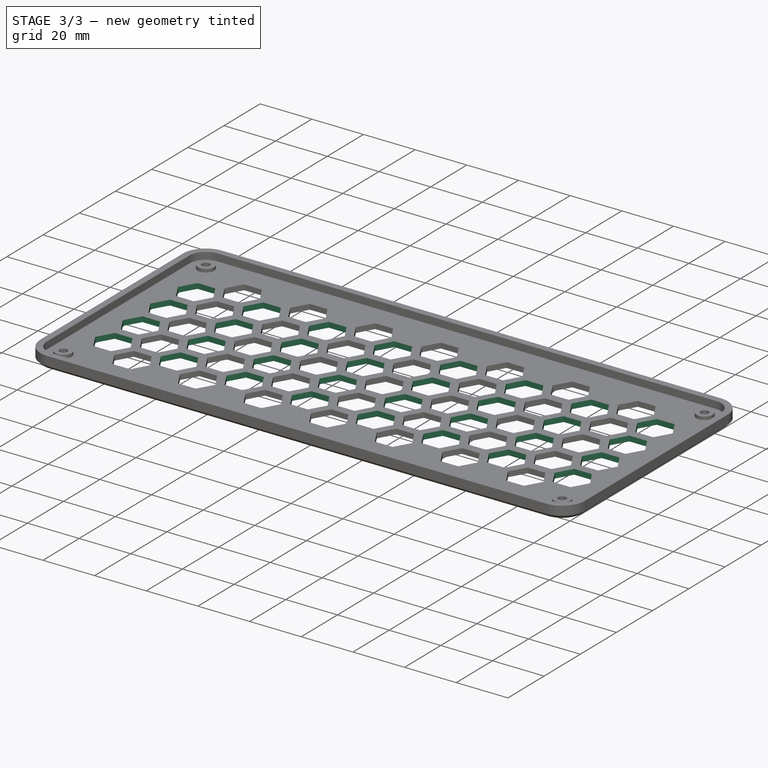
[diagram: stage 3 of 3 — iso view after this stage's code; geometry added in this stage tinted green]
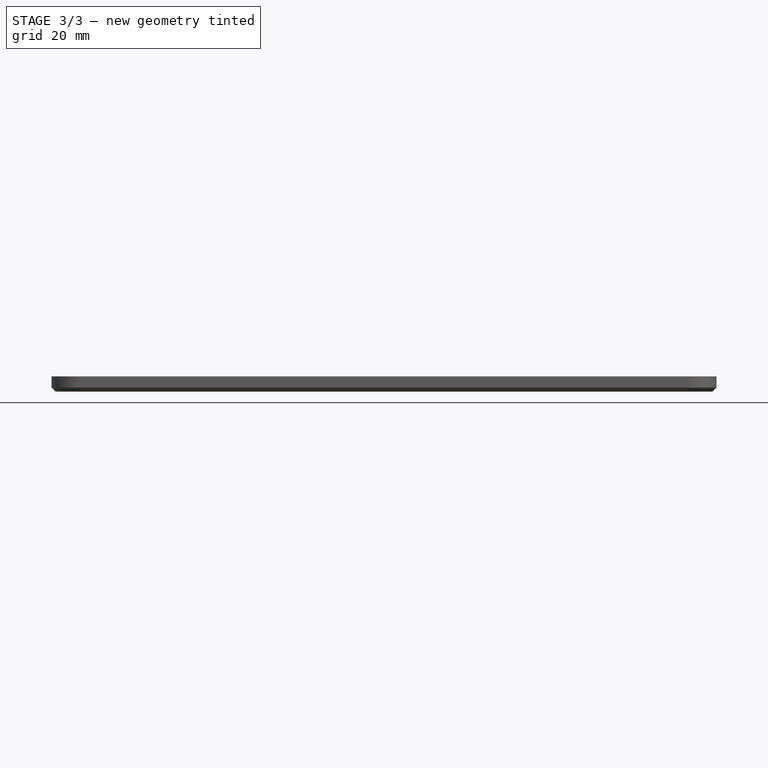
[diagram: stage 3 of 3 — front view after this stage's code; geometry added in this stage tinted green]
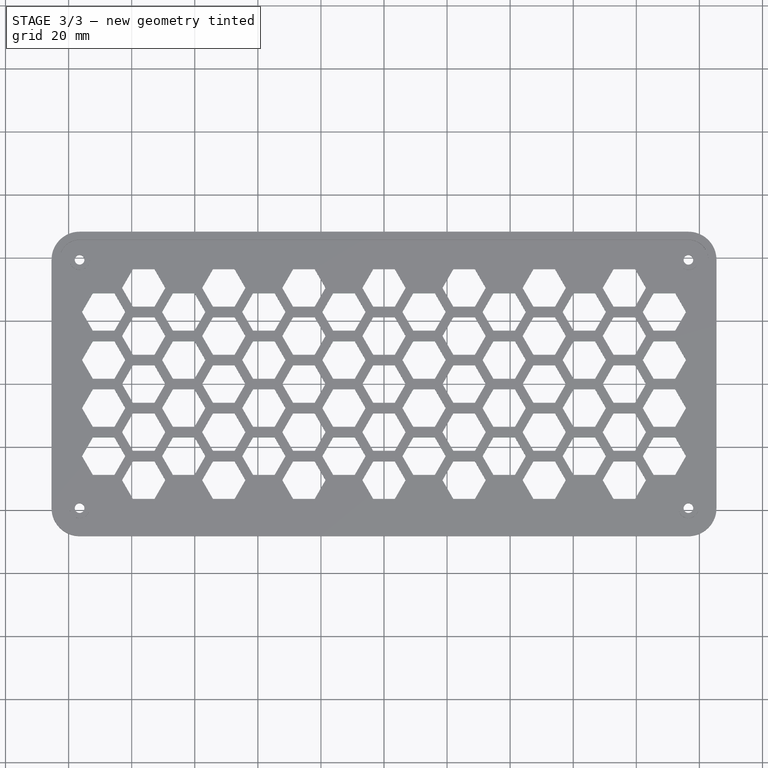
[diagram: stage 3 of 3 — top view after this stage's code; geometry added in this stage tinted green]
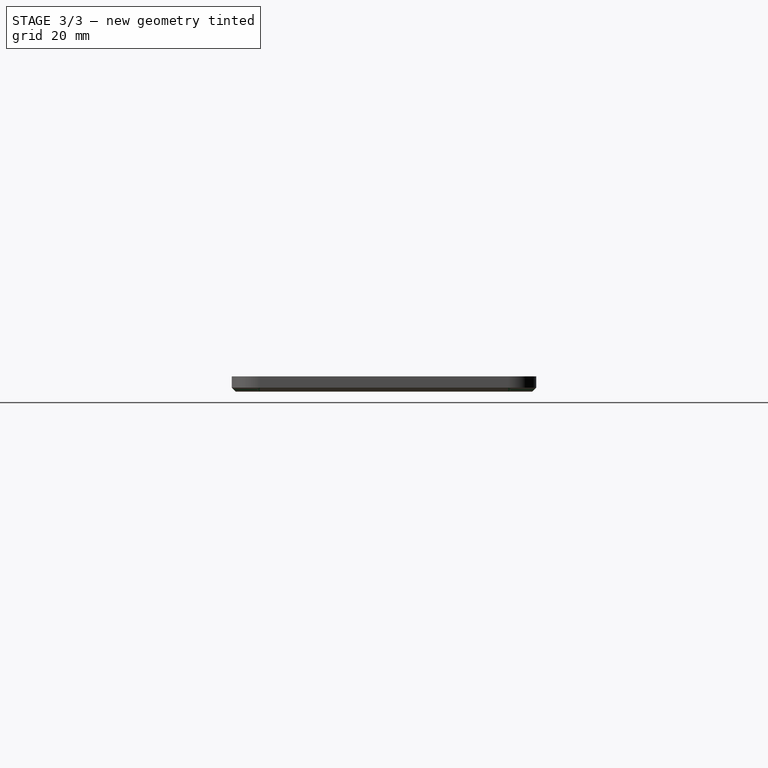
[diagram: stage 3 of 3 — right view after this stage's code; geometry added in this stage tinted green]
FEATURE [PartDesign::Pocket] Pocket002
  BaseFeature = -> Pocket001
  Direction = (0,0,1)
  Length = 5.0038
  Length2 = 5
  Profile = -> Sketch004
  ReferenceAxis = -> Sketch004 [N_Axis]
  Type = 0
FEATURE [PartDesign::Chamfer] Chamfer
  Angle = 45
  Base = -> Pocket002 [Edge12,Edge14,Edge15,Edge13,Edge11,Edge6,Edge3,Edge9]
  BaseFeature = -> Pocket002
  ChamferType = 0
  FlipDirection = false
  Size = 1.27
  Size2 = 1
  SupportTransform = false
  UseAllEdges = false
FEATURE [PartDesign::Body] Body
  Group = -> [Sketch,Pad,Sketch001,Pad001,Sketch002,Pad002,Sketch003,Sketch004,Sketch005,Pocket,Pocket001,Pocket002,Chamfer]
  Origin = -> Origin
  Tip = -> Chamfer
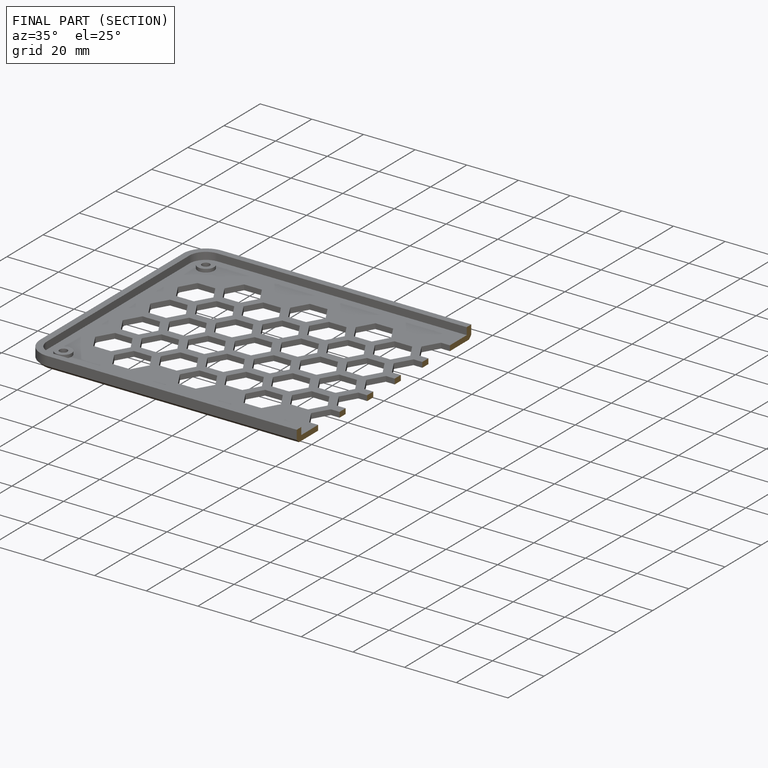
[diagram: finished part — half-section view (interior)]
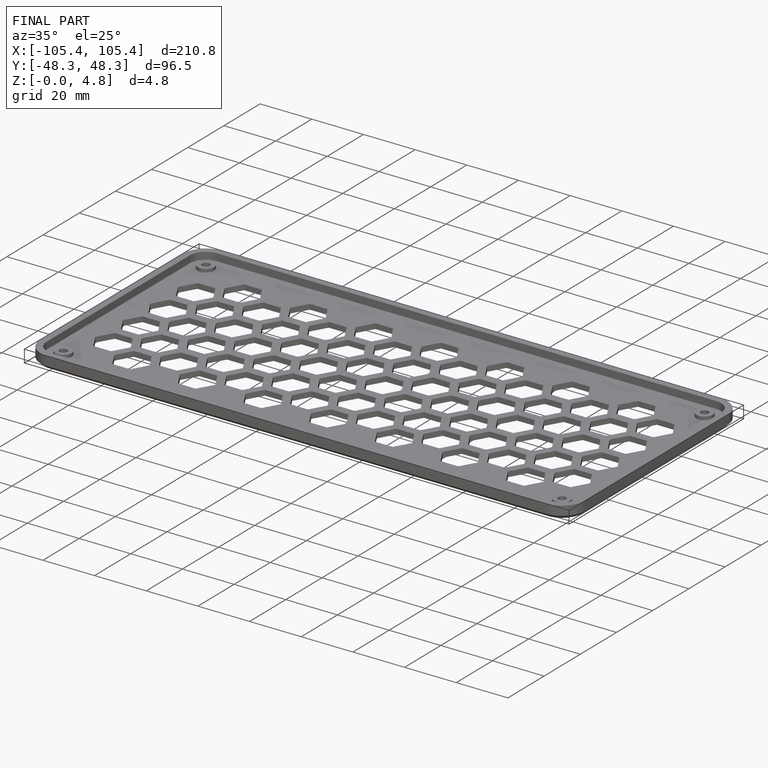
[diagram: finished part — iso view with bounding-box wireframe]
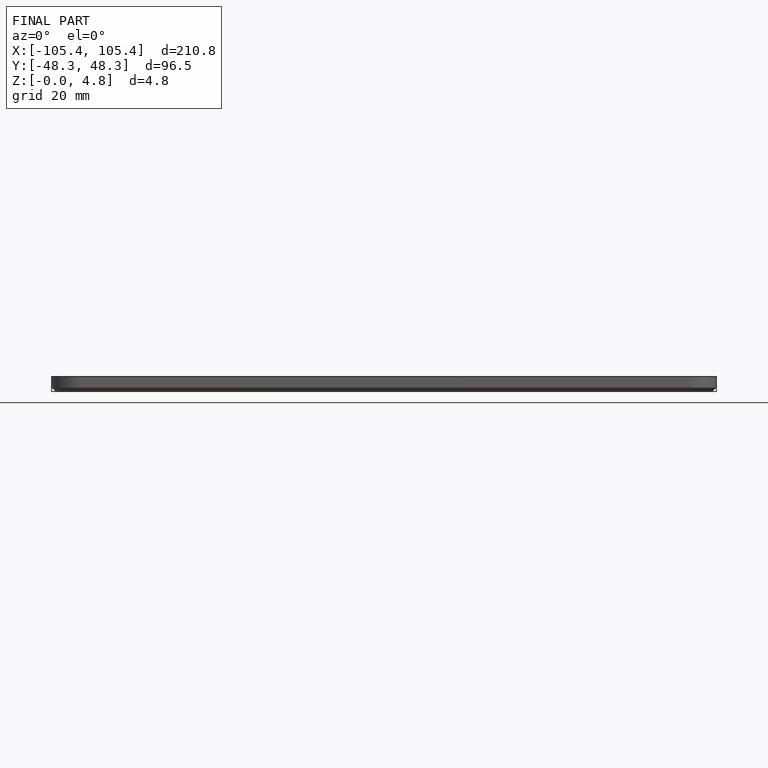
[diagram: finished part — front view with bounding-box wireframe]
